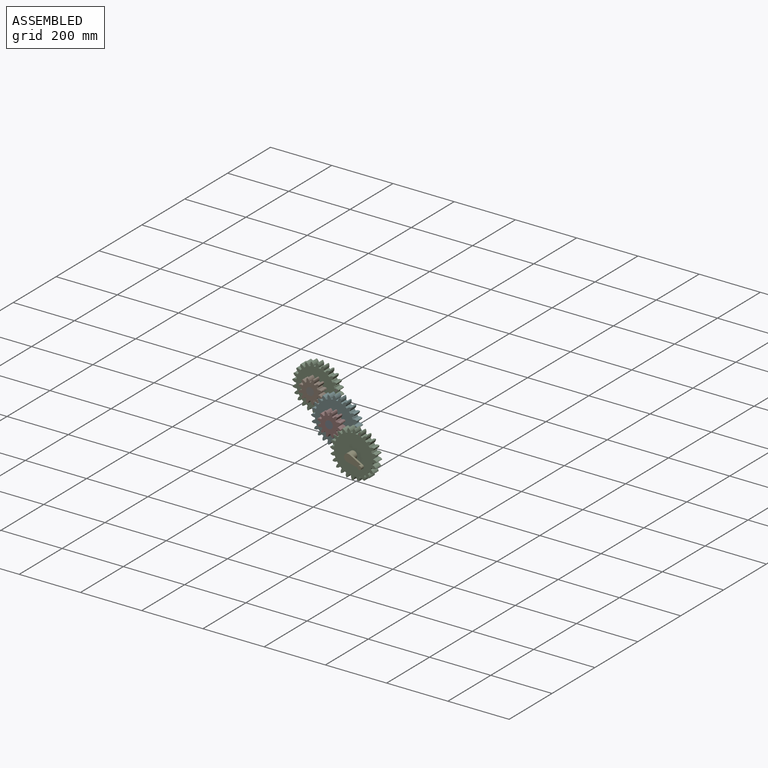
[diagram: assembled view]
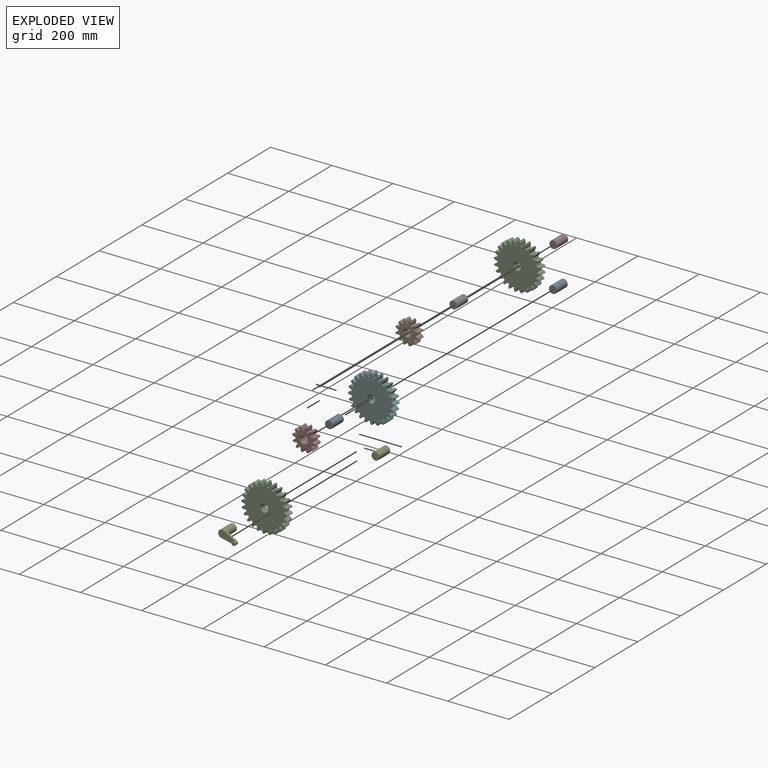
[diagram: exploded view]
GUIDED TOUR — MATED ASSEMBLY (Onshape document 572100a6e4b03e934c71d7c7, AutoMate assembly 572100a6e4b03e934c71d7c7_01c58cd28e32e69fdc508b0a_15b8ac3ff651e4833749cd05_default)

This assembly has 14 components, labeled P0..P13 below (a component is one placed occurrence of a part; the same part can appear more than once), held together by 11 mates. A mate is a constraint between two components; its type names the relative motion it leaves free:
  FASTENED — locks the two components together rigidly (no relative motion),
  REVOLUTE — leaves rotation about the listed axis free (a hinge).
Axis/direction vectors are unit vectors and 'through' points are millimeter coordinates, both in the assembly's world frame.

MATES
  1. FASTENED "Fastened 2": P5 <-> P7, direction (0.000, -1.000, 0.000) through (-79.67, 12.67, 66.97) mm
  2. REVOLUTE "Revolute 2": P0 <-> P7, axis (0.000, -1.000, 0.000) through (-79.67, -12.73, 66.97) mm
  3. REVOLUTE "Revolute 1": P12 <-> P4, axis (0.000, -1.000, 0.000) through (0.00, 12.70, 0.00) mm
  4. FASTENED "Fastened 8": P1 <-> P2, direction (0.000, 1.000, 0.000) through (20.19, -12.95, 65.74) mm
  5. FASTENED "Fastened 1": P4 <-> P2, direction (0.000, 1.000, 0.000) through (0.00, 12.70, 0.00) mm
  6. FASTENED "Fastened 5": P8 <-> P0, direction (0.000, -1.000, 0.000) through (-79.67, 38.07, 66.97) mm
  7. FASTENED "Fastened 7": P13 <-> P5, direction (0.000, 1.000, 0.000) through (-128.79, 12.42, 115.37) mm
  8. FASTENED "Fastened 4": P10 <-> P9, direction (0.000, -1.000, 0.000) through (-159.30, 38.02, 134.01) mm
  9. FASTENED "Fastened 6": P11 <-> P10, direction (0.000, 1.000, 0.000) through (-91.48, 37.77, 146.50) mm
  10. REVOLUTE "Revolute 3": P6 <-> P3, axis (0.000, 1.000, 0.000) through (-159.30, 63.42, 134.01) mm
  11. FASTENED "Fastened 3": P6 <-> P9, direction (0.000, -1.000, 0.000) through (-159.30, 12.62, 134.01) mm

ASSEMBLY ORDER
  1. P0 — the base component [order heuristic]
  2. P2 — core [order heuristic]
  3. P6 — core [order heuristic]
  4. P5 [order verified]
  5. P10 [order verified]
  6. P7 — core [order heuristic]
  7. P4 [order verified]
  8. P11 [order verified]
  9. P13 [order verified]
  10. P1 [order verified]
  11. P12 [order verified]
  12. P9 — core [order heuristic]
  13. P8 [order verified]
  14. P3 [order verified]
Order-tag legend:
  [order verified] — this step's position reverses a verified removal order: the component was checked to insert without passing through the ones already placed.
  [order heuristic] — the first 5 components form the assembly's core: parts whose collision-free extraction could not be verified, listed in mate-graph order.

Of the 14 components, 14 carry the full construction recipe — the FeatureScript program that regenerates the part's solid from scratch; the rest are supplied as boundary geometry only.
Because this assembly has more than 12 components, the tour below covers the 12 most significant ones individually (every recipe-attached component first, then the largest by part volume), in assembly order; the remaining 2 are summarized together in a grouped section at the end.
Each toured component is shown spotlighted twice — in the assembled view, then in the exploded view, where a leader line traces a displaced component back to its assembled socket (saturated green if recipe-attached, orange if geometry-only; every other component desaturated gray) — followed by its recipe or geometry summary and the mates that hold it.
NOTE — this tour is split across 2 documents so each fits a 32k-token context. This is document 1: the component sections continue in the remaining 1 document, each repeating the header above.
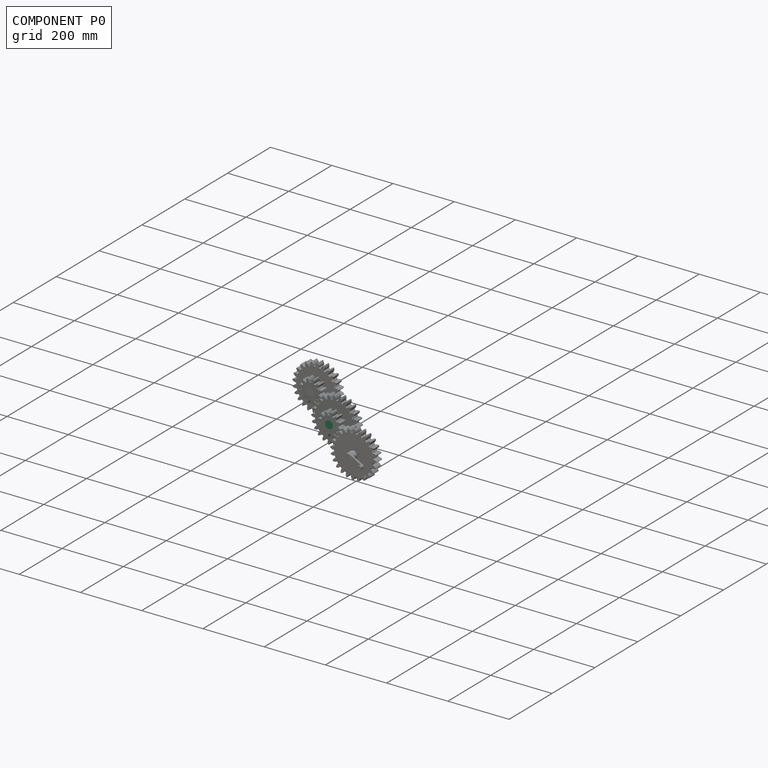
[diagram: component P0 — assembled]
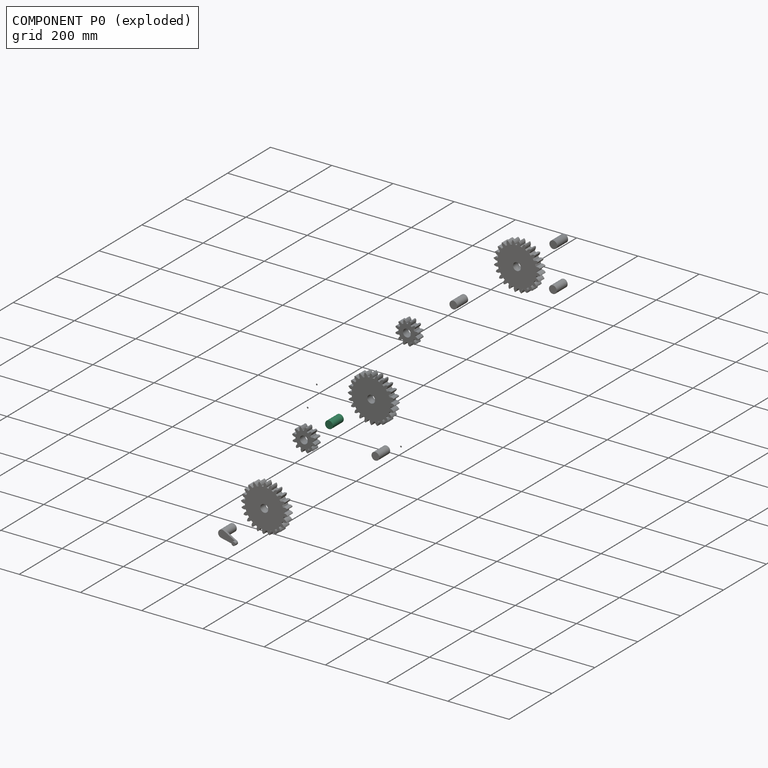
[diagram: component P0 — exploded]
COMPONENT P0 — recipe-attached (CADFS 00387538, mesh-verified: the recipe's output STEP matches this component's geometry to below the mesh-comparison resolution (tessellation chordal tolerance ~0.0933 mm)).
Held by: REVOLUTE mate "Revolute 2" to P7; FASTENED mate "Fastened 5" to P8.
Construction recipe (FeatureScript — the CAD program that rebuilds this solid; sketch coordinates are in the units given by the * unit suffixes, e.g. mm):

FeatureScript 1511;
import(path : "onshape/std/geometry.fs", version : "1511.0");
import(path : "onshape/std/common.fs", version : "1511.0");
const mm = millimeter;
const VERTEX = EntityType.VERTEX;
const EDGE = EntityType.EDGE;
const FACE = EntityType.FACE;
const BODY = EntityType.BODY;
function v(x, y){return vector(x, y);}
function OD(order){return orderDisambiguation(order);}
function OSD(set){return originalSetDisambiguation(set);}
function TD(topology){return topologyDisambiguation(topology);}
function TDD(query){return trueDependencyDisambiguation(query);}
function sQuery(a, b, c) {return sketchEntityQuery(a, b, c);}

annotation { "Feature Type Name" : "Feature", "Feature Type Description" : "" }
export const myFeature = defineFeature(function(context is Context, id is Id, definition is map)
    precondition{}
    {
        {
            var Q0;
            Q0=qCreatedBy(makeId("Front.planeOp"),FACE);
            var sketch = newSketch(context, id + "F0", { "sketchPlane" : qUnion([Q0])});
            skCircle(sketch, "E0", {"center": v(0, 0) * mm, "radius": 12.7 * mm});
            skSolve(sketch);
        }
        {
            var Q0;
            Q0=makeQuery(id+"F0.imprint","IMPRINT",FACE,{"disambiguationData":[TD([[makeQuery(id+"F0.imprint","IMPRINT",EDGE,{"derivedFrom":sQuery(id+"F0.wireOp",EDGE,"E0")}),1.0]])]});
            extrude(context, id + "F1", {"entities" : qUnion([Q0]), "depth" : 50.8 * mm});
        }
    });
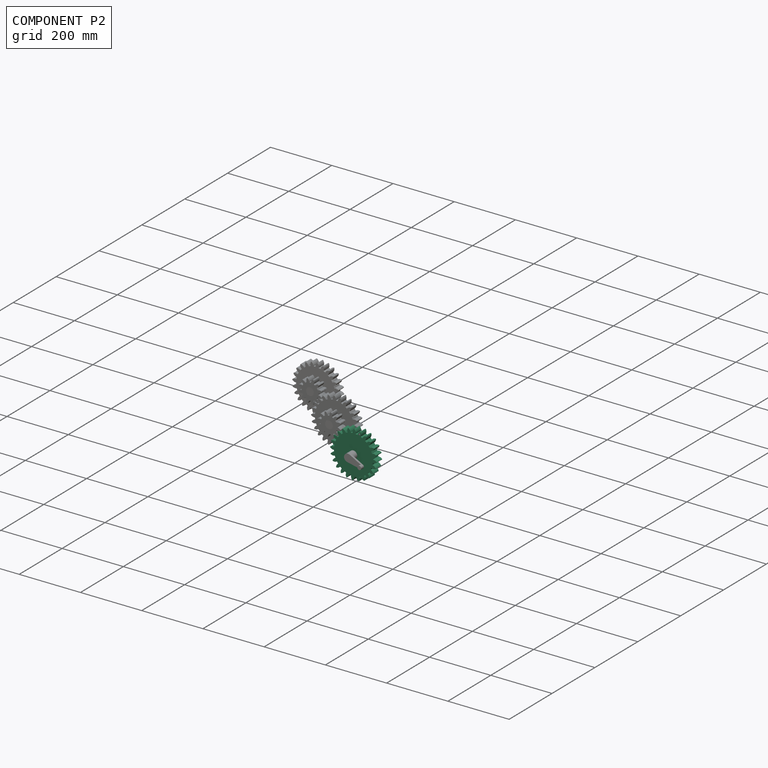
[diagram: component P2 — assembled]
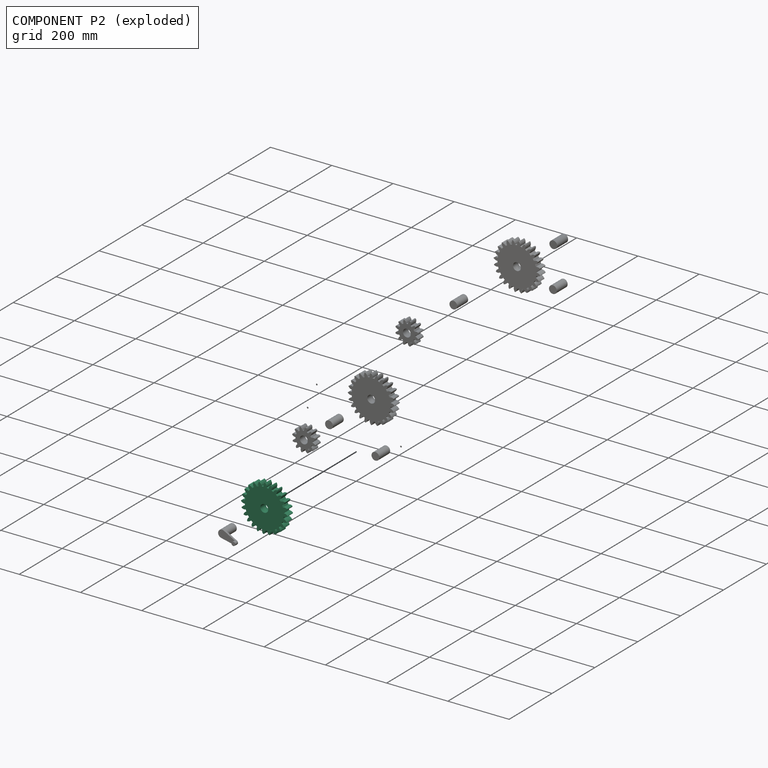
[diagram: component P2 — exploded]
COMPONENT P2 — recipe-attached (CADFS 00387536, mesh-verified: the recipe's output STEP matches this component's geometry to below the mesh-comparison resolution (tessellation chordal tolerance ~0.325 mm)).
Held by: FASTENED mate "Fastened 8" to P1; FASTENED mate "Fastened 1" to P4.
Construction recipe (FeatureScript — the CAD program that rebuilds this solid; sketch coordinates are in the units given by the * unit suffixes, e.g. mm):

FeatureScript 1511;
import(path : "onshape/std/geometry.fs", version : "1511.0");
import(path : "onshape/std/common.fs", version : "1511.0");
const mm = millimeter;
const VERTEX = EntityType.VERTEX;
const EDGE = EntityType.EDGE;
const FACE = EntityType.FACE;
const BODY = EntityType.BODY;
function v(x, y){return vector(x, y);}
function OD(order){return orderDisambiguation(order);}
function OSD(set){return originalSetDisambiguation(set);}
function TD(topology){return topologyDisambiguation(topology);}
function TDD(query){return trueDependencyDisambiguation(query);}
function sQuery(a, b, c) {return sketchEntityQuery(a, b, c);}

annotation { "Feature Type Name" : "Feature", "Feature Type Description" : "" }
export const myFeature = defineFeature(function(context is Context, id is Id, definition is map)
    precondition{}
    {
        {
            var Q0;
            Q0=qCreatedBy(makeId("Front.planeOp"),FACE);
            var sketch = newSketch(context, id + "F0", { "sketchPlane" : qUnion([Q0])});
            skPoint(sketch, "E0.rect.middle", {"position": v(0, 0) * mm});
            skLineSegment(sketch, "E1", {"start": v(0, 0) * mm, "end": v(0, 76.2) * mm});
            skLineSegment(sketch, "E2", {"start": v(0, 0) * mm, "end": v(0, -76.2) * mm});
            skLineSegment(sketch, "E3", {"start": v(0, 0) * mm, "end": v(19.72, 73.6) * mm});
            skLineSegment(sketch, "E4", {"start": v(0, 0) * mm, "end": v(38.1, 66) * mm});
            skLineSegment(sketch, "E5", {"start": v(0, 0) * mm, "end": v(53.88, 53.88) * mm});
            skLineSegment(sketch, "E6", {"start": v(0, 0) * mm, "end": v(66, 38.1) * mm});
            skLineSegment(sketch, "E7", {"start": v(0, 0) * mm, "end": v(73.6, 19.72) * mm});
            skLineSegment(sketch, "E8", {"start": v(0, 0) * mm, "end": v(76.2, 0) * mm});
            skLineSegment(sketch, "E9", {"start": v(0, 0) * mm, "end": v(73.6, -19.72) * mm});
            skLineSegment(sketch, "E10", {"start": v(0, 0) * mm, "end": v(66, -38.1) * mm});
            skLineSegment(sketch, "E11", {"start": v(0, 0) * mm, "end": v(53.88, -53.88) * mm});
            skLineSegment(sketch, "E12", {"start": v(0, 0) * mm, "end": v(38.1, -66) * mm});
            skLineSegment(sketch, "E13", {"start": v(0, 0) * mm, "end": v(19.72, -73.6) * mm});
            skLineSegment(sketch, "E14", {"start": v(0, 0) * mm, "end": v(-19.72, -73.6) * mm});
            skLineSegment(sketch, "E15", {"start": v(0, 0) * mm, "end": v(-38.1, -66) * mm});
            skLineSegment(sketch, "E16", {"start": v(0, 0) * mm, "end": v(-53.88, -53.88) * mm});
            skLineSegment(sketch, "E17", {"start": v(0, 0) * mm, "end": v(-66, -38.1) * mm});
            skLineSegment(sketch, "E18", {"start": v(0, 0) * mm, "end": v(-73.6, -19.72) * mm});
            skLineSegment(sketch, "E19", {"start": v(0, 0) * mm, "end": v(-76.2, 0.07) * mm});
            skLineSegment(sketch, "E20", {"start": v(0, 0) * mm, "end": v(-73.6, 19.72) * mm});
            skLineSegment(sketch, "E21", {"start": v(0, 0) * mm, "end": v(-66, 38.1) * mm});
            skLineSegment(sketch, "E22", {"start": v(0, 0) * mm, "end": v(-53.88, 53.88) * mm});
            skLineSegment(sketch, "E23", {"start": v(0, 0) * mm, "end": v(-38.1, 66) * mm});
            skLineSegment(sketch, "E24", {"start": v(0, 0) * mm, "end": v(-19.72, 73.6) * mm});
            skCircle(sketch, "E25", {"center": v(0, 0) * mm, "radius": 76.2 * mm});
            skCircle(sketch, "E26", {"center": v(0, 0) * mm, "radius": 69.85 * mm});
            skCircle(sketch, "E27", {"center": v(0, 0) * mm, "radius": 63.5 * mm});
            skLineSegment(sketch, "E28", {"start": v(0, 0) * mm, "end": v(-4.98, 76.04) * mm});
            skLineSegment(sketch, "E29", {"start": v(0, 69.85) * mm, "end": v(-76.58, 69.85) * mm});
            skLineSegment(sketch, "E30", {"start": v(0, 69.85) * mm, "end": v(-76.5, 42) * mm});
            skLineSegment(sketch, "E31", {"start": v(-4.98, 76.04) * mm, "end": v(-7.15, 109.16) * mm});
            skLineSegment(sketch, "E32", {"start": v(0, 76.2) * mm, "end": v(0, 110.22) * mm});
            skCircle(sketch, "E33", {"center": v(0, 69.85) * mm, "radius": 14.6 * mm});
            skPoint(sketch, "E34", {"position": v(-13.72, 64.85) * mm});
            skArc(sketch, "E35", {"start": v(0.82, 63.5) * mm, "mid": v(-0.22, 70.43) * mm, "end": v(-4.37, 76.07) * mm});
            skArc(sketch, "E36.MirrorCS", {"start": v(-9.1, 62.84) * mm, "mid": v(-8.97, 69.85) * mm, "end": v(-5.6, 76) * mm});
            skSolve(sketch);
        }
        {
            var Q0;
            {var subQ1=sQuery(id+"F0.wireOp",EDGE,"E23");var subQ3=sQuery(id+"F0.wireOp",EDGE,"E27");var subQ4=makeQuery(id+"F0.imprint","INTERSECT",VERTEX,{"derivedFrom":[subQ1,subQ3]});Q0=makeQuery(id+"F0.imprint","IMPRINT",FACE,{"disambiguationData":[TD([[makeQuery(id+"F0.imprint","IMPRINT",EDGE,{"disambiguationData":[TD([[subQ4,1.0]])],"derivedFrom":subQ3}),1.0]])]});}
            var Q1;
            {var subQ1=sQuery(id+"F0.wireOp",EDGE,"E22");var subQ3=sQuery(id+"F0.wireOp",EDGE,"E27");var subQ4=makeQuery(id+"F0.imprint","INTERSECT",VERTEX,{"derivedFrom":[subQ1,subQ3]});Q1=makeQuery(id+"F0.imprint","IMPRINT",FACE,{"disambiguationData":[TD([[makeQuery(id+"F0.imprint","IMPRINT",EDGE,{"disambiguationData":[TD([[subQ4,1.0]])],"derivedFrom":subQ3}),1.0]])]});}
            var Q2;
            {var subQ1=sQuery(id+"F0.wireOp",EDGE,"E1");var subQ3=sQuery(id+"F0.wireOp",EDGE,"E33");var subQ4=makeQuery(id+"F0.imprint","INTERSECT",VERTEX,{"derivedFrom":[subQ1,subQ3]});Q2=makeQuery(id+"F0.imprint","IMPRINT",FACE,{"disambiguationData":[TD([[makeQuery(id+"F0.imprint","IMPRINT",EDGE,{"disambiguationData":[TD([[subQ4,1.0]])],"derivedFrom":subQ3}),-1.0]])]});}
            var Q3;
            {var subQ1=sQuery(id+"F0.wireOp",EDGE,"E19");var subQ3=sQuery(id+"F0.wireOp",EDGE,"E27");var subQ4=makeQuery(id+"F0.imprint","INTERSECT",VERTEX,{"derivedFrom":[subQ1,subQ3]});Q3=makeQuery(id+"F0.imprint","IMPRINT",FACE,{"disambiguationData":[TD([[makeQuery(id+"F0.imprint","IMPRINT",EDGE,{"disambiguationData":[TD([[subQ4,1.0]])],"derivedFrom":subQ3}),1.0]])]});}
            var Q4;
            {var subQ1=sQuery(id+"F0.wireOp",EDGE,"E24");var subQ3=sQuery(id+"F0.wireOp",EDGE,"E27");var subQ4=makeQuery(id+"F0.imprint","INTERSECT",VERTEX,{"derivedFrom":[subQ1,subQ3]});Q4=makeQuery(id+"F0.imprint","IMPRINT",FACE,{"disambiguationData":[TD([[makeQuery(id+"F0.imprint","IMPRINT",EDGE,{"disambiguationData":[TD([[subQ4,1.0]])],"derivedFrom":subQ3}),1.0]])]});}
            var Q5;
            {var subQ1=sQuery(id+"F0.wireOp",EDGE,"E20");var subQ3=sQuery(id+"F0.wireOp",EDGE,"E27");var subQ4=makeQuery(id+"F0.imprint","INTERSECT",VERTEX,{"derivedFrom":[subQ1,subQ3]});Q5=makeQuery(id+"F0.imprint","IMPRINT",FACE,{"disambiguationData":[TD([[makeQuery(id+"F0.imprint","IMPRINT",EDGE,{"disambiguationData":[TD([[subQ4,1.0]])],"derivedFrom":subQ3}),1.0]])]});}
            var Q6;
            {var subQ1=sQuery(id+"F0.wireOp",EDGE,"E21");var subQ3=sQuery(id+"F0.wireOp",EDGE,"E27");var subQ4=makeQuery(id+"F0.imprint","INTERSECT",VERTEX,{"derivedFrom":[subQ1,subQ3]});Q6=makeQuery(id+"F0.imprint","IMPRINT",FACE,{"disambiguationData":[TD([[makeQuery(id+"F0.imprint","IMPRINT",EDGE,{"disambiguationData":[TD([[subQ4,1.0]])],"derivedFrom":subQ3}),1.0]])]});}
            var Q7;
            {var subQ1=sQuery(id+"F0.wireOp",EDGE,"E6");var subQ3=sQuery(id+"F0.wireOp",EDGE,"E27");var subQ4=makeQuery(id+"F0.imprint","INTERSECT",VERTEX,{"derivedFrom":[subQ1,subQ3]});Q7=makeQuery(id+"F0.imprint","IMPRINT",FACE,{"disambiguationData":[TD([[makeQuery(id+"F0.imprint","IMPRINT",EDGE,{"disambiguationData":[TD([[subQ4,1.0]])],"derivedFrom":subQ3}),1.0]])]});}
            var Q8;
            {var subQ1=sQuery(id+"F0.wireOp",EDGE,"E4");var subQ3=sQuery(id+"F0.wireOp",EDGE,"E27");var subQ4=makeQuery(id+"F0.imprint","INTERSECT",VERTEX,{"derivedFrom":[subQ1,subQ3]});Q8=makeQuery(id+"F0.imprint","IMPRINT",FACE,{"disambiguationData":[TD([[makeQuery(id+"F0.imprint","IMPRINT",EDGE,{"disambiguationData":[TD([[subQ4,1.0]])],"derivedFrom":subQ3}),1.0]])]});}
            var Q9;
            {var subQ1=sQuery(id+"F0.wireOp",EDGE,"E7");var subQ3=sQuery(id+"F0.wireOp",EDGE,"E27");var subQ4=makeQuery(id+"F0.imprint","INTERSECT",VERTEX,{"derivedFrom":[subQ1,subQ3]});Q9=makeQuery(id+"F0.imprint","IMPRINT",FACE,{"disambiguationData":[TD([[makeQuery(id+"F0.imprint","IMPRINT",EDGE,{"disambiguationData":[TD([[subQ4,1.0]])],"derivedFrom":subQ3}),1.0]])]});}
            var Q10;
            {var subQ0=sQuery(id+"F0.wireOp",EDGE,"E3");var subQ5=sQuery(id+"F0.wireOp",EDGE,"E27");var subQ6=makeQuery(id+"F0.imprint","INTERSECT",VERTEX,{"derivedFrom":[subQ0,subQ5]});Q10=makeQuery(id+"F0.imprint","IMPRINT",FACE,{"disambiguationData":[TD([[makeQuery(id+"F0.imprint","IMPRINT",EDGE,{"disambiguationData":[TD([[subQ6,-1.0]])],"derivedFrom":subQ5}),1.0]])]});}
            var Q11;
            {var subQ1=sQuery(id+"F0.wireOp",EDGE,"E3");var subQ3=sQuery(id+"F0.wireOp",EDGE,"E27");var subQ4=makeQuery(id+"F0.imprint","INTERSECT",VERTEX,{"derivedFrom":[subQ1,subQ3]});Q11=makeQuery(id+"F0.imprint","IMPRINT",FACE,{"disambiguationData":[TD([[makeQuery(id+"F0.imprint","IMPRINT",EDGE,{"disambiguationData":[TD([[subQ4,1.0]])],"derivedFrom":subQ3}),1.0]])]});}
            var Q12;
            {var subQ1=sQuery(id+"F0.wireOp",EDGE,"E5");var subQ3=sQuery(id+"F0.wireOp",EDGE,"E27");var subQ4=makeQuery(id+"F0.imprint","INTERSECT",VERTEX,{"derivedFrom":[subQ1,subQ3]});Q12=makeQuery(id+"F0.imprint","IMPRINT",FACE,{"disambiguationData":[TD([[makeQuery(id+"F0.imprint","IMPRINT",EDGE,{"disambiguationData":[TD([[subQ4,1.0]])],"derivedFrom":subQ3}),1.0]])]});}
            var Q13;
            {var subQ1=sQuery(id+"F0.wireOp",EDGE,"E17");var subQ3=sQuery(id+"F0.wireOp",EDGE,"E27");var subQ4=makeQuery(id+"F0.imprint","INTERSECT",VERTEX,{"derivedFrom":[subQ1,subQ3]});Q13=makeQuery(id+"F0.imprint","IMPRINT",FACE,{"disambiguationData":[TD([[makeQuery(id+"F0.imprint","IMPRINT",EDGE,{"disambiguationData":[TD([[subQ4,1.0]])],"derivedFrom":subQ3}),1.0]])]});}
            var Q14;
            {var subQ1=sQuery(id+"F0.wireOp",EDGE,"E15");var subQ3=sQuery(id+"F0.wireOp",EDGE,"E27");var subQ4=makeQuery(id+"F0.imprint","INTERSECT",VERTEX,{"derivedFrom":[subQ1,subQ3]});Q14=makeQuery(id+"F0.imprint","IMPRINT",FACE,{"disambiguationData":[TD([[makeQuery(id+"F0.imprint","IMPRINT",EDGE,{"disambiguationData":[TD([[subQ4,1.0]])],"derivedFrom":subQ3}),1.0]])]});}
            var Q15;
            {var subQ1=sQuery(id+"F0.wireOp",EDGE,"E16");var subQ3=sQuery(id+"F0.wireOp",EDGE,"E27");var subQ4=makeQuery(id+"F0.imprint","INTERSECT",VERTEX,{"derivedFrom":[subQ1,subQ3]});Q15=makeQuery(id+"F0.imprint","IMPRINT",FACE,{"disambiguationData":[TD([[makeQuery(id+"F0.imprint","IMPRINT",EDGE,{"disambiguationData":[TD([[subQ4,1.0]])],"derivedFrom":subQ3}),1.0]])]});}
            var Q16;
            {var subQ1=sQuery(id+"F0.wireOp",EDGE,"E2");var subQ3=sQuery(id+"F0.wireOp",EDGE,"E27");var subQ4=makeQuery(id+"F0.imprint","INTERSECT",VERTEX,{"derivedFrom":[subQ1,subQ3]});Q16=makeQuery(id+"F0.imprint","IMPRINT",FACE,{"disambiguationData":[TD([[makeQuery(id+"F0.imprint","IMPRINT",EDGE,{"disambiguationData":[TD([[subQ4,1.0]])],"derivedFrom":subQ3}),1.0]])]});}
            var Q17;
            {var subQ1=sQuery(id+"F0.wireOp",EDGE,"E14");var subQ3=sQuery(id+"F0.wireOp",EDGE,"E27");var subQ4=makeQuery(id+"F0.imprint","INTERSECT",VERTEX,{"derivedFrom":[subQ1,subQ3]});Q17=makeQuery(id+"F0.imprint","IMPRINT",FACE,{"disambiguationData":[TD([[makeQuery(id+"F0.imprint","IMPRINT",EDGE,{"disambiguationData":[TD([[subQ4,1.0]])],"derivedFrom":subQ3}),1.0]])]});}
            var Q18;
            {var subQ1=sQuery(id+"F0.wireOp",EDGE,"E18");var subQ3=sQuery(id+"F0.wireOp",EDGE,"E27");var subQ4=makeQuery(id+"F0.imprint","INTERSECT",VERTEX,{"derivedFrom":[subQ1,subQ3]});Q18=makeQuery(id+"F0.imprint","IMPRINT",FACE,{"disambiguationData":[TD([[makeQuery(id+"F0.imprint","IMPRINT",EDGE,{"disambiguationData":[TD([[subQ4,1.0]])],"derivedFrom":subQ3}),1.0]])]});}
            var Q19;
            {var subQ0=sQuery(id+"F0.wireOp",EDGE,"E33");var subQ1=sQuery(id+"F0.wireOp",EDGE,"E1");var subQ2=makeQuery(id+"F0.imprint","INTERSECT",VERTEX,{"derivedFrom":[subQ1,subQ0]});Q19=makeQuery(id+"F0.imprint","IMPRINT",FACE,{"disambiguationData":[TD([[makeQuery(id+"F0.imprint","IMPRINT",EDGE,{"disambiguationData":[TD([[subQ2,-1.0]])],"derivedFrom":subQ1}),1.0]])]});}
            var Q20;
            {var subQ0=sQuery(id+"F0.wireOp",EDGE,"E27");var subQ1=makeQuery(id+"F0.imprint","INTERSECT",VERTEX,{"derivedFrom":[subQ0,sQuery(id+"F0.wireOp",EDGE,"E36.MirrorCS")]});Q20=makeQuery(id+"F0.imprint","IMPRINT",FACE,{"disambiguationData":[TD([[makeQuery(id+"F0.imprint","IMPRINT",EDGE,{"disambiguationData":[TD([[subQ1,1.0]])],"derivedFrom":subQ0}),1.0]])]});}
            var Q21;
            {var subQ0=sQuery(id+"F0.wireOp",EDGE,"E33");var subQ1=sQuery(id+"F0.wireOp",EDGE,"E1");var subQ2=makeQuery(id+"F0.imprint","INTERSECT",VERTEX,{"derivedFrom":[subQ1,subQ0]});Q21=makeQuery(id+"F0.imprint","IMPRINT",FACE,{"disambiguationData":[TD([[makeQuery(id+"F0.imprint","IMPRINT",EDGE,{"disambiguationData":[TD([[subQ2,-1.0]])],"derivedFrom":subQ1}),-1.0]])]});}
            var Q22;
            {var subQ1=sQuery(id+"F0.wireOp",EDGE,"E1");var subQ3=sQuery(id+"F0.wireOp",EDGE,"E27");var subQ4=makeQuery(id+"F0.imprint","INTERSECT",VERTEX,{"derivedFrom":[subQ1,subQ3]});Q22=makeQuery(id+"F0.imprint","IMPRINT",FACE,{"disambiguationData":[TD([[makeQuery(id+"F0.imprint","IMPRINT",EDGE,{"disambiguationData":[TD([[subQ4,-1.0]])],"derivedFrom":subQ3}),-1.0]])]});}
            var Q23;
            {var subQ0=sQuery(id+"F0.wireOp",EDGE,"E36.MirrorCS");var subQ1=sQuery(id+"F0.wireOp",EDGE,"E27");var subQ2=makeQuery(id+"F0.imprint","INTERSECT",VERTEX,{"derivedFrom":[subQ1,subQ0]});Q23=makeQuery(id+"F0.imprint","IMPRINT",FACE,{"disambiguationData":[TD([[makeQuery(id+"F0.imprint","IMPRINT",EDGE,{"disambiguationData":[TD([[subQ2,1.0]])],"derivedFrom":subQ1}),-1.0]])]});}
            var Q24;
            {var subQ0=sQuery(id+"F0.wireOp",EDGE,"E28");var subQ1=sQuery(id+"F0.wireOp",EDGE,"E26");var subQ2=makeQuery(id+"F0.imprint","INTERSECT",VERTEX,{"derivedFrom":[subQ1,subQ0]});Q24=makeQuery(id+"F0.imprint","IMPRINT",FACE,{"disambiguationData":[TD([[makeQuery(id+"F0.imprint","IMPRINT",EDGE,{"disambiguationData":[TD([[subQ2,-1.0]])],"derivedFrom":subQ1}),1.0]])]});}
            var Q25;
            {var subQ0=sQuery(id+"F0.wireOp",EDGE,"E28");var subQ1=sQuery(id+"F0.wireOp",EDGE,"E26");var subQ2=makeQuery(id+"F0.imprint","INTERSECT",VERTEX,{"derivedFrom":[subQ1,subQ0]});Q25=makeQuery(id+"F0.imprint","IMPRINT",FACE,{"disambiguationData":[TD([[makeQuery(id+"F0.imprint","IMPRINT",EDGE,{"disambiguationData":[TD([[subQ2,-1.0]])],"derivedFrom":subQ1}),-1.0]])]});}
            var Q26;
            {var subQ0=sQuery(id+"F0.wireOp",EDGE,"E28");var subQ5=sQuery(id+"F0.wireOp",EDGE,"E29");var subQ6=makeQuery(id+"F0.imprint","INTERSECT",VERTEX,{"derivedFrom":[subQ0,subQ5]});Q26=makeQuery(id+"F0.imprint","IMPRINT",FACE,{"disambiguationData":[TD([[makeQuery(id+"F0.imprint","IMPRINT",EDGE,{"disambiguationData":[TD([[subQ6,-1.0]])],"derivedFrom":subQ5}),-1.0]])]});}
            var Q27;
            {var subQ1=sQuery(id+"F0.wireOp",EDGE,"E25");var subQ3=sQuery(id+"F0.wireOp",EDGE,"E35");var subQ4=makeQuery(id+"F0.imprint","INTERSECT",VERTEX,{"derivedFrom":[subQ1,subQ3]});Q27=makeQuery(id+"F0.imprint","IMPRINT",FACE,{"disambiguationData":[TD([[makeQuery(id+"F0.imprint","IMPRINT",EDGE,{"disambiguationData":[TD([[subQ4,-1.0]])],"derivedFrom":subQ1}),1.0]])]});}
            var Q28;
            {var subQ0=sQuery(id+"F0.wireOp",EDGE,"E35");var subQ3=sQuery(id+"F0.wireOp",EDGE,"E27");var subQ5=makeQuery(id+"F0.imprint","INTERSECT",VERTEX,{"derivedFrom":[subQ3,subQ0]});Q28=makeQuery(id+"F0.imprint","IMPRINT",FACE,{"disambiguationData":[TD([[makeQuery(id+"F0.imprint","IMPRINT",EDGE,{"disambiguationData":[TD([[subQ5,-1.0]])],"derivedFrom":subQ3}),-1.0]])]});}
            var Q29;
            {var subQ1=sQuery(id+"F0.wireOp",EDGE,"E26");var subQ3=sQuery(id+"F0.wireOp",EDGE,"E28");var subQ4=makeQuery(id+"F0.imprint","INTERSECT",VERTEX,{"derivedFrom":[subQ1,subQ3]});Q29=makeQuery(id+"F0.imprint","IMPRINT",FACE,{"disambiguationData":[TD([[makeQuery(id+"F0.imprint","IMPRINT",EDGE,{"disambiguationData":[TD([[subQ4,-1.0]])],"derivedFrom":subQ3}),-1.0]])]});}
            var Q30;
            {var subQ1=sQuery(id+"F0.wireOp",EDGE,"E26");var subQ3=sQuery(id+"F0.wireOp",EDGE,"E28");var subQ4=makeQuery(id+"F0.imprint","INTERSECT",VERTEX,{"derivedFrom":[subQ1,subQ3]});Q30=makeQuery(id+"F0.imprint","IMPRINT",FACE,{"disambiguationData":[TD([[makeQuery(id+"F0.imprint","IMPRINT",EDGE,{"disambiguationData":[TD([[subQ4,1.0]])],"derivedFrom":subQ3}),-1.0]])]});}
            var Q31;
            {var subQ1=sQuery(id+"F0.wireOp",EDGE,"E10");var subQ3=sQuery(id+"F0.wireOp",EDGE,"E27");var subQ4=makeQuery(id+"F0.imprint","INTERSECT",VERTEX,{"derivedFrom":[subQ1,subQ3]});Q31=makeQuery(id+"F0.imprint","IMPRINT",FACE,{"disambiguationData":[TD([[makeQuery(id+"F0.imprint","IMPRINT",EDGE,{"disambiguationData":[TD([[subQ4,1.0]])],"derivedFrom":subQ3}),1.0]])]});}
            var Q32;
            {var subQ1=sQuery(id+"F0.wireOp",EDGE,"E9");var subQ3=sQuery(id+"F0.wireOp",EDGE,"E27");var subQ4=makeQuery(id+"F0.imprint","INTERSECT",VERTEX,{"derivedFrom":[subQ1,subQ3]});Q32=makeQuery(id+"F0.imprint","IMPRINT",FACE,{"disambiguationData":[TD([[makeQuery(id+"F0.imprint","IMPRINT",EDGE,{"disambiguationData":[TD([[subQ4,1.0]])],"derivedFrom":subQ3}),1.0]])]});}
            var Q33;
            {var subQ1=sQuery(id+"F0.wireOp",EDGE,"E8");var subQ3=sQuery(id+"F0.wireOp",EDGE,"E27");var subQ4=makeQuery(id+"F0.imprint","INTERSECT",VERTEX,{"derivedFrom":[subQ1,subQ3]});Q33=makeQuery(id+"F0.imprint","IMPRINT",FACE,{"disambiguationData":[TD([[makeQuery(id+"F0.imprint","IMPRINT",EDGE,{"disambiguationData":[TD([[subQ4,1.0]])],"derivedFrom":subQ3}),1.0]])]});}
            var Q34;
            {var subQ1=sQuery(id+"F0.wireOp",EDGE,"E11");var subQ3=sQuery(id+"F0.wireOp",EDGE,"E27");var subQ4=makeQuery(id+"F0.imprint","INTERSECT",VERTEX,{"derivedFrom":[subQ1,subQ3]});Q34=makeQuery(id+"F0.imprint","IMPRINT",FACE,{"disambiguationData":[TD([[makeQuery(id+"F0.imprint","IMPRINT",EDGE,{"disambiguationData":[TD([[subQ4,1.0]])],"derivedFrom":subQ3}),1.0]])]});}
            var Q35;
            {var subQ1=sQuery(id+"F0.wireOp",EDGE,"E2");var subQ3=sQuery(id+"F0.wireOp",EDGE,"E27");var subQ4=makeQuery(id+"F0.imprint","INTERSECT",VERTEX,{"derivedFrom":[subQ1,subQ3]});Q35=makeQuery(id+"F0.imprint","IMPRINT",FACE,{"disambiguationData":[TD([[makeQuery(id+"F0.imprint","IMPRINT",EDGE,{"disambiguationData":[TD([[subQ4,-1.0]])],"derivedFrom":subQ3}),1.0]])]});}
            var Q36;
            {var subQ1=sQuery(id+"F0.wireOp",EDGE,"E12");var subQ3=sQuery(id+"F0.wireOp",EDGE,"E27");var subQ4=makeQuery(id+"F0.imprint","INTERSECT",VERTEX,{"derivedFrom":[subQ1,subQ3]});Q36=makeQuery(id+"F0.imprint","IMPRINT",FACE,{"disambiguationData":[TD([[makeQuery(id+"F0.imprint","IMPRINT",EDGE,{"disambiguationData":[TD([[subQ4,1.0]])],"derivedFrom":subQ3}),1.0]])]});}
            extrude(context, id + "F1", {"entities" : qUnion([Q0, Q1, Q2, Q3, Q4, Q5, Q6, Q7, Q8, Q9, Q10, Q11, Q12, Q13, Q14, Q15, Q16, Q17, Q18, Q19, Q20, Q21, Q22, Q23, Q24, Q25, Q26, Q27, Q28, Q29, Q30, Q31, Q32, Q33, Q34, Q35, Q36]), "endBound" : BoundingType.SYMMETRIC, "depth" : 25.4 * mm});
        }
        {
            var Q0;
            Q0=makeQuery(id+"F1.opExtrude","SWEPT_BODY",BODY,{"disambiguationData":[OSD([sQuery(id+"F0.wireOp",EDGE,"E25"),sQuery(id+"F0.wireOp",EDGE,"E27"),sQuery(id+"F0.wireOp",EDGE,"E35"),sQuery(id+"F0.wireOp",EDGE,"E36.MirrorCS")])]});
            var Q1;
            Q1=makeQuery(id+"F1.opExtrude","SWEPT_FACE",FACE,{"disambiguationData":[OSD([sQuery(id+"F0.wireOp",EDGE,"E27")])]});
            circularPattern(context, id + "F2", {"operationType" : NewBodyOperationType.ADD, "entities" : qUnion([Q0]), "axis" : qUnion([Q1]), "angle" : 15 * degree, "instanceCount" : 24});
        }
        {
            var Q0;
            Q0=makeQuery(id+"F1.opExtrude","CAP_FACE",FACE,{"disambiguationData":[OSD([sQuery(id+"F0.wireOp",EDGE,"E25"),sQuery(id+"F0.wireOp",EDGE,"E27"),sQuery(id+"F0.wireOp",EDGE,"E35"),sQuery(id+"F0.wireOp",EDGE,"E36.MirrorCS")])],"isStart":false});
            var sketch = newSketch(context, id + "F3", { "sketchPlane" : qUnion([Q0])});
            skPoint(sketch, "E37", {"position": v(0, 0) * mm});
            skSolve(sketch);
        }
        {
            var Q0;
            Q0=sQuery(id+"F3.wireOp",VERTEX,"E37");
            var Q1;
            Q1=makeQuery(id+"F1.opExtrude","SWEPT_BODY",BODY,{"disambiguationData":[OSD([sQuery(id+"F0.wireOp",EDGE,"E25"),sQuery(id+"F0.wireOp",EDGE,"E27"),sQuery(id+"F0.wireOp",EDGE,"E35"),sQuery(id+"F0.wireOp",EDGE,"E36.MirrorCS")])]});
            hole(context, id + "F4", {"style" : HoleStyle.SIMPLE, "holeDiameter" : 25.4 * mm, "endStyle" : HoleEndStyle.THROUGH, "locations" : qUnion([Q0]), "scope" : qUnion([Q1])});
        }
        {
            var Q0;
            {var subQ0=makeQuery(id+"F1.opExtrude","CAP_FACE",FACE,{"disambiguationData":[OSD([sQuery(id+"F0.wireOp",EDGE,"E25"),sQuery(id+"F0.wireOp",EDGE,"E27"),sQuery(id+"F0.wireOp",EDGE,"E35"),sQuery(id+"F0.wireOp",EDGE,"E36.MirrorCS")])],"isStart":false});Q0=makeQuery(id+"F2.boolean.opBoolean","MERGE",FACE,{"derivedFrom":[subQ0,makeQuery(id+"F2.opPattern","COPY",FACE,{"derivedFrom":subQ0,"instanceName":"1"}),makeQuery(id+"F2.opPattern","COPY",FACE,{"derivedFrom":subQ0,"instanceName":"2"}),makeQuery(id+"F2.opPattern","COPY",FACE,{"derivedFrom":subQ0,"instanceName":"3"}),makeQuery(id+"F2.opPattern","COPY",FACE,{"derivedFrom":subQ0,"instanceName":"4"}),makeQuery(id+"F2.opPattern","COPY",FACE,{"derivedFrom":subQ0,"instanceName":"5"}),makeQuery(id+"F2.opPattern","COPY",FACE,{"derivedFrom":subQ0,"instanceName":"6"}),makeQuery(id+"F2.opPattern","COPY",FACE,{"derivedFrom":subQ0,"instanceName":"7"}),makeQuery(id+"F2.opPattern","COPY",FACE,{"derivedFrom":subQ0,"instanceName":"8"}),makeQuery(id+"F2.opPattern","COPY",FACE,{"derivedFrom":subQ0,"instanceName":"9"}),makeQuery(id+"F2.opPattern","COPY",FACE,{"derivedFrom":subQ0,"instanceName":"10"}),makeQuery(id+"F2.opPattern","COPY",FACE,{"derivedFrom":subQ0,"instanceName":"11"}),makeQuery(id+"F2.opPattern","COPY",FACE,{"derivedFrom":subQ0,"instanceName":"12"}),makeQuery(id+"F2.opPattern","COPY",FACE,{"derivedFrom":subQ0,"instanceName":"13"}),makeQuery(id+"F2.opPattern","COPY",FACE,{"derivedFrom":subQ0,"instanceName":"14"}),makeQuery(id+"F2.opPattern","COPY",FACE,{"derivedFrom":subQ0,"instanceName":"15"}),makeQuery(id+"F2.opPattern","COPY",FACE,{"derivedFrom":subQ0,"instanceName":"16"}),makeQuery(id+"F2.opPattern","COPY",FACE,{"derivedFrom":subQ0,"instanceName":"17"}),makeQuery(id+"F2.opPattern","COPY",FACE,{"derivedFrom":subQ0,"instanceName":"18"}),makeQuery(id+"F2.opPattern","COPY",FACE,{"derivedFrom":subQ0,"instanceName":"19"}),makeQuery(id+"F2.opPattern","COPY",FACE,{"derivedFrom":subQ0,"instanceName":"20"}),makeQuery(id+"F2.opPattern","COPY",FACE,{"derivedFrom":subQ0,"instanceName":"21"}),makeQuery(id+"F2.opPattern","COPY",FACE,{"derivedFrom":subQ0,"instanceName":"22"}),makeQuery(id+"F2.opPattern","COPY",FACE,{"derivedFrom":subQ0,"instanceName":"23"})]});}
            var sketch = newSketch(context, id + "F5", { "sketchPlane" : qUnion([Q0])});
            skCircle(sketch, "E38", {"center": v(-4.51, 68.62) * mm, "radius": 3.51 * mm});
            skSolve(sketch);
        }
        {
            var Q0;
            Q0=makeQuery(id+"F5.imprint","IMPRINT",FACE,{"disambiguationData":[TD([[makeQuery(id+"F5.imprint","IMPRINT",EDGE,{"derivedFrom":sQuery(id+"F5.wireOp",EDGE,"E38")}),1.0]])]});
            extrude(context, id + "F6", {"entities" : qUnion([Q0]), "operationType" : NewBodyOperationType.ADD, "depth" : 0.25 * mm});
        }
    });
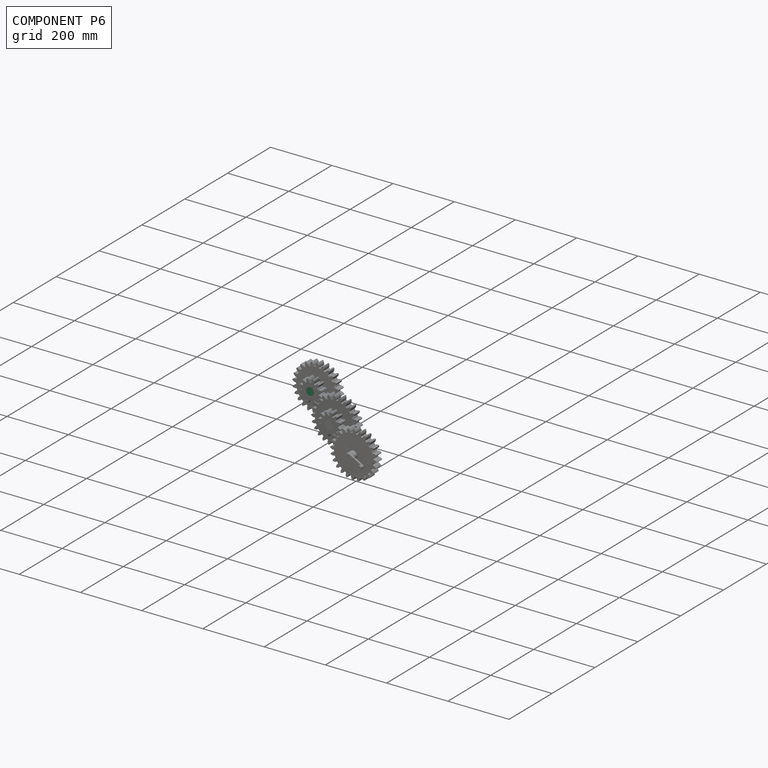
[diagram: component P6 — assembled]
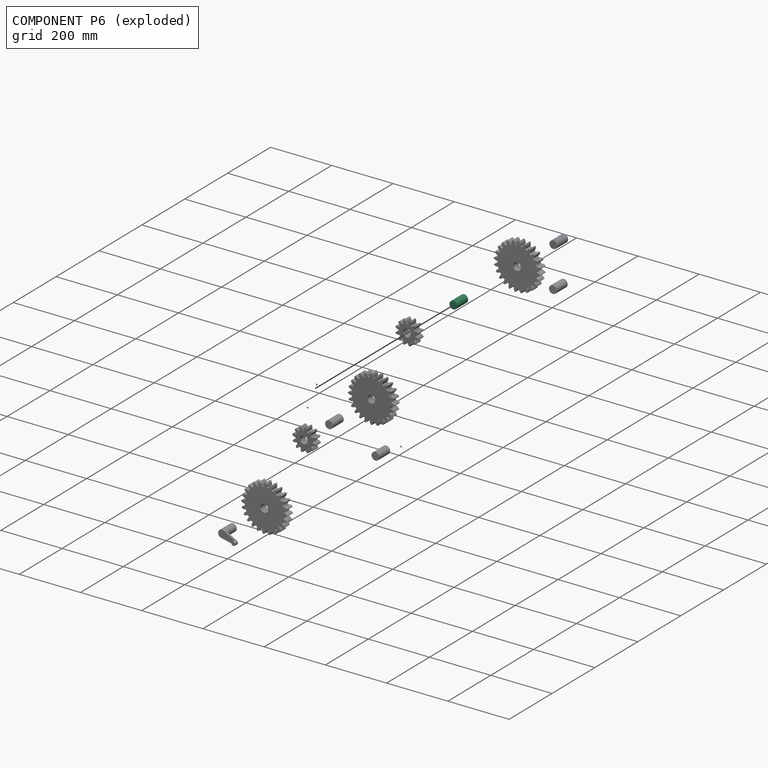
[diagram: component P6 — exploded]
COMPONENT P6 — same part as P0 (CADFS 00387538); its construction recipe is shown at P0.
Held by: REVOLUTE mate "Revolute 3" to P3; FASTENED mate "Fastened 3" to P9.
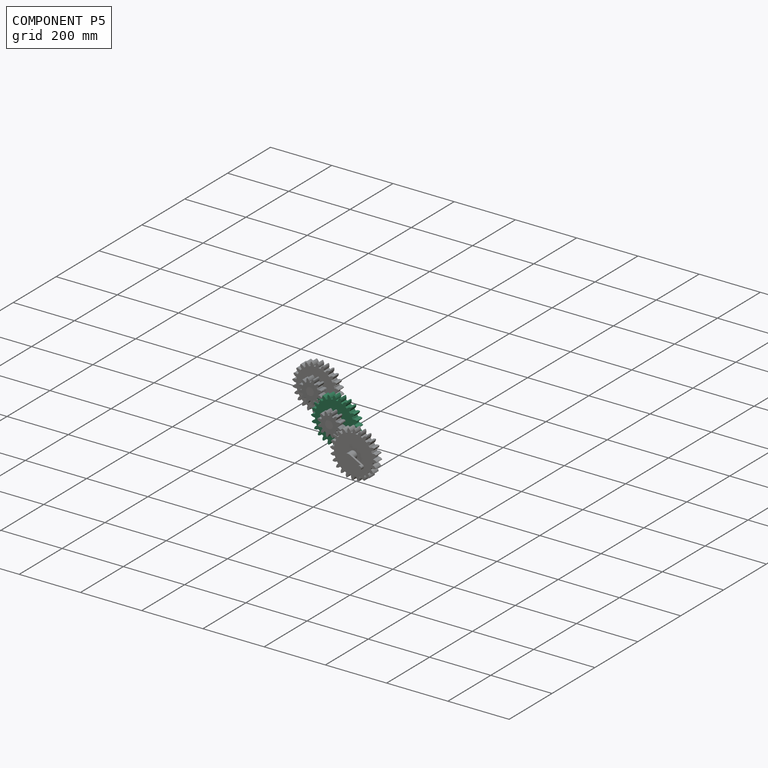
[diagram: component P5 — assembled]
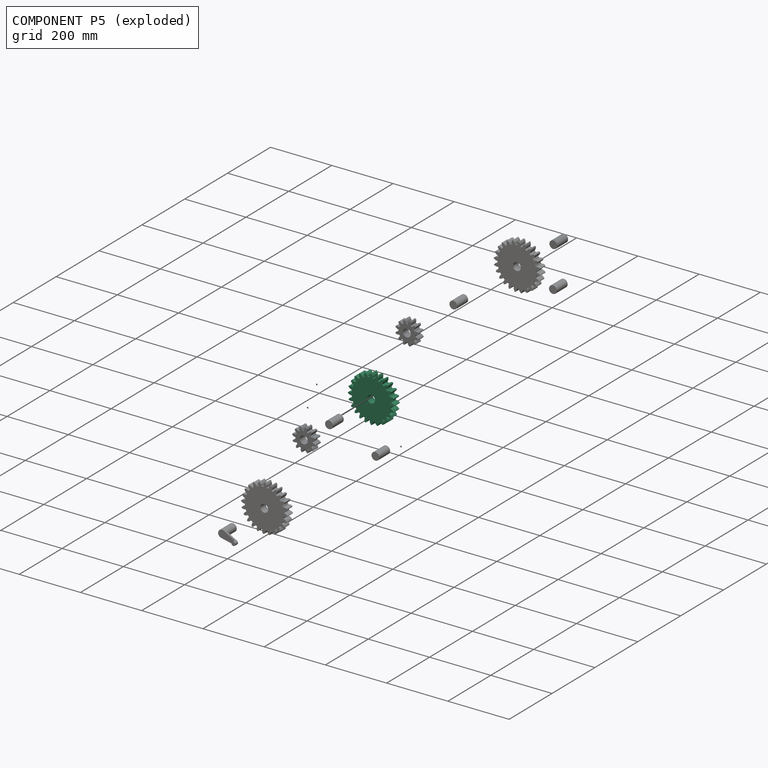
[diagram: component P5 — exploded]
COMPONENT P5 — same part as P2 (CADFS 00387536); its construction recipe is shown at P2.
Held by: FASTENED mate "Fastened 2" to P7; FASTENED mate "Fastened 7" to P13.
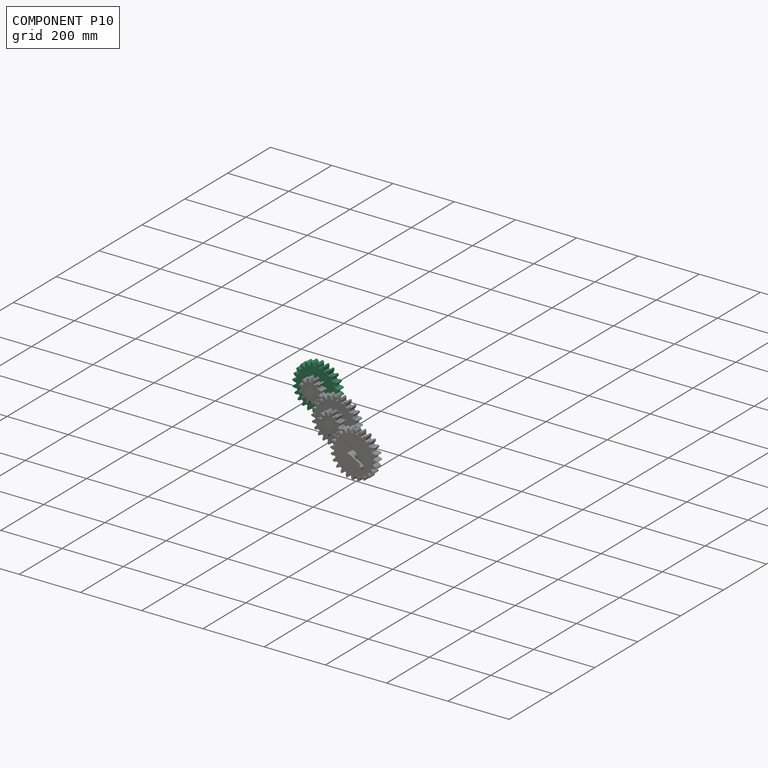
[diagram: component P10 — assembled]
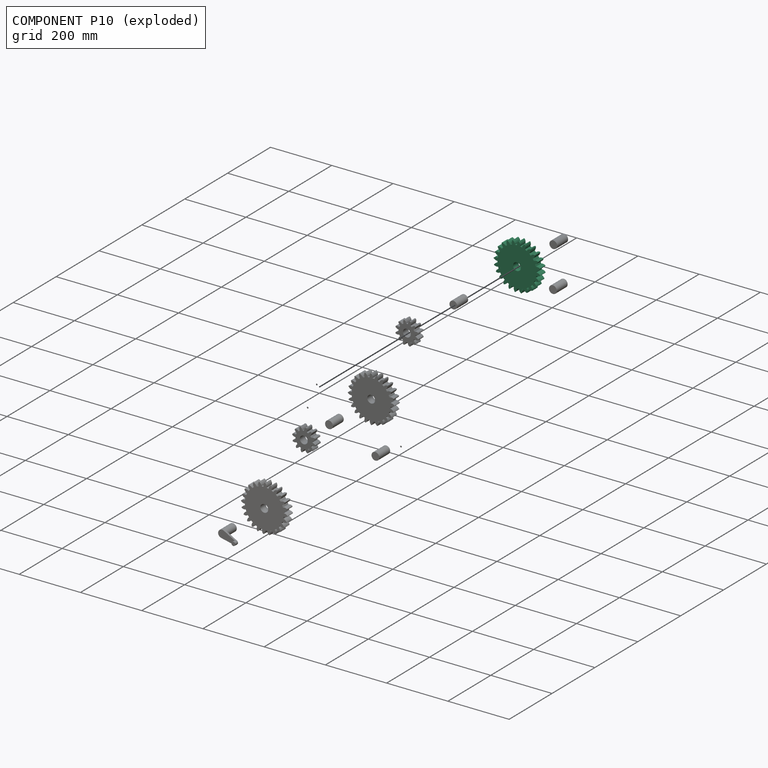
[diagram: component P10 — exploded]
COMPONENT P10 — same part as P2 (CADFS 00387536); its construction recipe is shown at P2.
Held by: FASTENED mate "Fastened 4" to P9; FASTENED mate "Fastened 6" to P11.
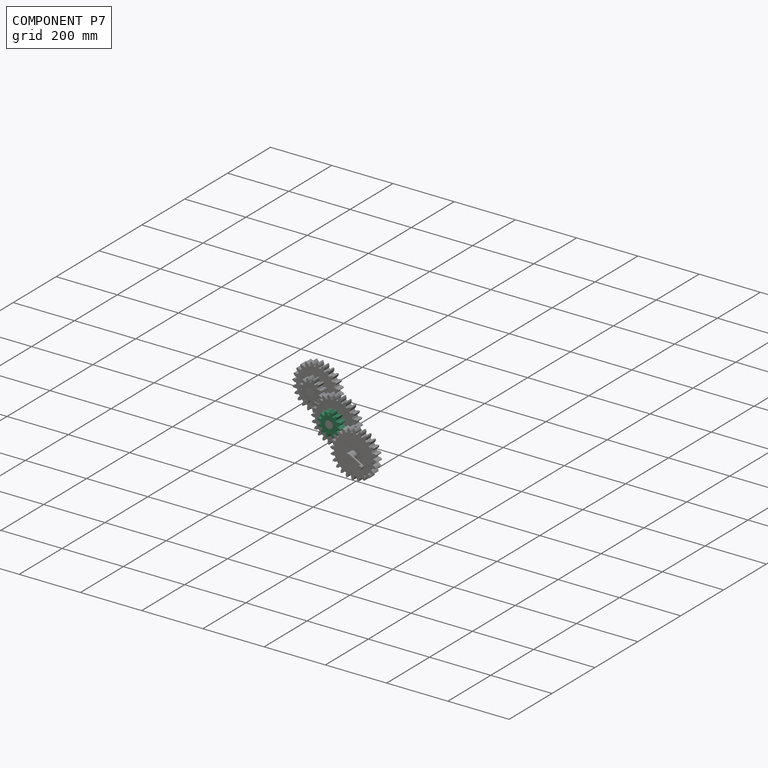
[diagram: component P7 — assembled]
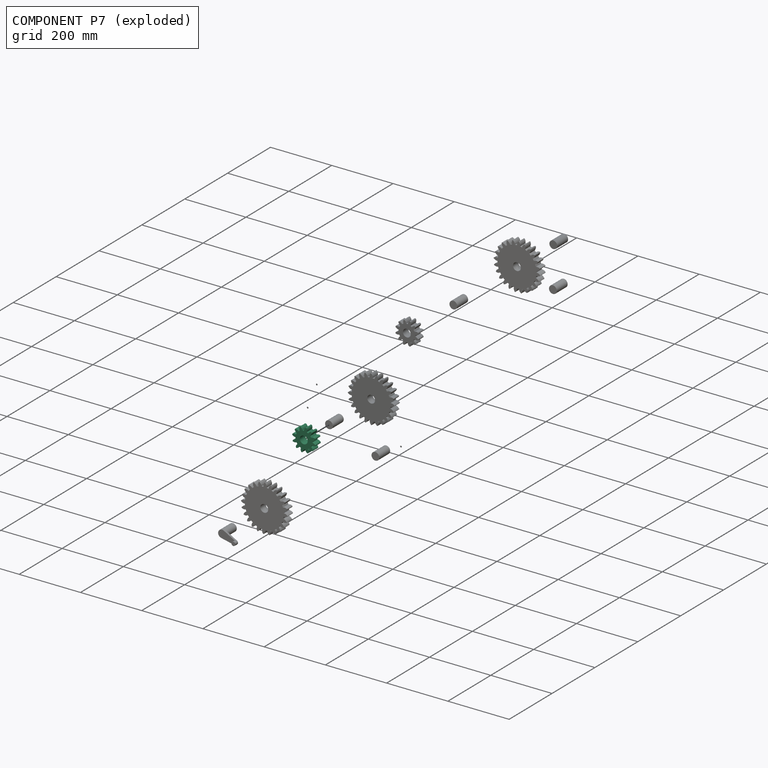
[diagram: component P7 — exploded]
COMPONENT P7 — recipe-attached (CADFS 00387537, mesh-verified: the recipe's output STEP matches this component's geometry to below the mesh-comparison resolution (tessellation chordal tolerance ~0.165 mm)).
Held by: FASTENED mate "Fastened 2" to P5; REVOLUTE mate "Revolute 2" to P0.
Construction recipe (FeatureScript — the CAD program that rebuilds this solid; sketch coordinates are in the units given by the * unit suffixes, e.g. mm):

FeatureScript 1511;
import(path : "onshape/std/geometry.fs", version : "1511.0");
import(path : "onshape/std/common.fs", version : "1511.0");
const mm = millimeter;
const VERTEX = EntityType.VERTEX;
const EDGE = EntityType.EDGE;
const FACE = EntityType.FACE;
const BODY = EntityType.BODY;
function v(x, y){return vector(x, y);}
function OD(order){return orderDisambiguation(order);}
function OSD(set){return originalSetDisambiguation(set);}
function TD(topology){return topologyDisambiguation(topology);}
function TDD(query){return trueDependencyDisambiguation(query);}
function sQuery(a, b, c) {return sketchEntityQuery(a, b, c);}

annotation { "Feature Type Name" : "Feature", "Feature Type Description" : "" }
export const myFeature = defineFeature(function(context is Context, id is Id, definition is map)
    precondition{}
    {
        {
            assignVariable(context, id + "F0", {"name" : "NOT", "anyValue" : 12});
        }
        {
            var Q0;
            Q0=qCreatedBy(makeId("Front.planeOp"),FACE);
            var sketch = newSketch(context, id + "F1", { "sketchPlane" : qUnion([Q0])});
            skCircle(sketch, "E0", {"center": v(0, 0) * mm, "radius": 38.1 * mm});
            skCircle(sketch, "E1", {"center": v(0, 0) * mm, "radius": 32.66 * mm});
            skCircle(sketch, "E2", {"center": v(0, 0) * mm, "radius": 27.21 * mm});
            skLineSegment(sketch, "E3", {"start": v(0, 0) * mm, "end": v(0, 56.5) * mm});
            skLineSegment(sketch, "E4", {"start": v(0, 0) * mm, "end": v(-7.42, 56.35) * mm});
            skLineSegment(sketch, "E5", {"start": v(0, 32.66) * mm, "end": v(-56.68, 32.66) * mm});
            skLineSegment(sketch, "E6", {"start": v(0, 32.66) * mm, "end": v(-52.94, 13.39) * mm});
            skCircle(sketch, "E7", {"center": v(0, 32.66) * mm, "radius": 14.6 * mm});
            skArc(sketch, "E8", {"start": v(0.87, 27.2) * mm, "mid": v(-0.13, 33.01) * mm, "end": v(-3.36, 37.95) * mm});
            skArc(sketch, "E9.MirrorCS", {"start": v(-7.88, 26.05) * mm, "mid": v(-8.41, 31.92) * mm, "end": v(-6.58, 37.53) * mm});
            skSolve(sketch);
        }
        {
            var Q0;
            {var subQ0=sQuery(id+"F1.wireOp",EDGE,"E3");var subQ1=sQuery(id+"F1.wireOp",EDGE,"E2");var subQ2=makeQuery(id+"F1.imprint","INTERSECT",VERTEX,{"derivedFrom":[subQ1,subQ0]});Q0=makeQuery(id+"F1.imprint","IMPRINT",FACE,{"disambiguationData":[TD([[makeQuery(id+"F1.imprint","IMPRINT",EDGE,{"disambiguationData":[TD([[subQ2,-1.0]])],"derivedFrom":subQ1}),-1.0]])]});}
            var Q1;
            {var subQ0=sQuery(id+"F1.wireOp",EDGE,"E9.MirrorCS");var subQ1=sQuery(id+"F1.wireOp",EDGE,"E2");var subQ2=makeQuery(id+"F1.imprint","INTERSECT",VERTEX,{"derivedFrom":[subQ1,subQ0]});Q1=makeQuery(id+"F1.imprint","IMPRINT",FACE,{"disambiguationData":[TD([[makeQuery(id+"F1.imprint","IMPRINT",EDGE,{"disambiguationData":[TD([[subQ2,1.0]])],"derivedFrom":subQ1}),-1.0]])]});}
            var Q2;
            {var subQ0=sQuery(id+"F1.wireOp",EDGE,"E4");var subQ1=sQuery(id+"F1.wireOp",EDGE,"E1");var subQ2=makeQuery(id+"F1.imprint","INTERSECT",VERTEX,{"derivedFrom":[subQ1,subQ0]});Q2=makeQuery(id+"F1.imprint","IMPRINT",FACE,{"disambiguationData":[TD([[makeQuery(id+"F1.imprint","IMPRINT",EDGE,{"disambiguationData":[TD([[subQ2,-1.0]])],"derivedFrom":subQ1}),1.0]])]});}
            var Q3;
            {var subQ0=sQuery(id+"F1.wireOp",EDGE,"E4");var subQ1=sQuery(id+"F1.wireOp",EDGE,"E1");var subQ2=makeQuery(id+"F1.imprint","INTERSECT",VERTEX,{"derivedFrom":[subQ1,subQ0]});Q3=makeQuery(id+"F1.imprint","IMPRINT",FACE,{"disambiguationData":[TD([[makeQuery(id+"F1.imprint","IMPRINT",EDGE,{"disambiguationData":[TD([[subQ2,-1.0]])],"derivedFrom":subQ1}),-1.0]])]});}
            var Q4;
            {var subQ1=sQuery(id+"F1.wireOp",EDGE,"E1");var subQ3=sQuery(id+"F1.wireOp",EDGE,"E4");var subQ4=makeQuery(id+"F1.imprint","INTERSECT",VERTEX,{"derivedFrom":[subQ1,subQ3]});Q4=makeQuery(id+"F1.imprint","IMPRINT",FACE,{"disambiguationData":[TD([[makeQuery(id+"F1.imprint","IMPRINT",EDGE,{"disambiguationData":[TD([[subQ4,1.0]])],"derivedFrom":subQ3}),-1.0]])]});}
            var Q5;
            {var subQ1=sQuery(id+"F1.wireOp",EDGE,"E1");var subQ3=sQuery(id+"F1.wireOp",EDGE,"E4");var subQ4=makeQuery(id+"F1.imprint","INTERSECT",VERTEX,{"derivedFrom":[subQ1,subQ3]});Q5=makeQuery(id+"F1.imprint","IMPRINT",FACE,{"disambiguationData":[TD([[makeQuery(id+"F1.imprint","IMPRINT",EDGE,{"disambiguationData":[TD([[subQ4,-1.0]])],"derivedFrom":subQ3}),-1.0]])]});}
            var Q6;
            {var subQ0=sQuery(id+"F1.wireOp",EDGE,"E8");var subQ1=sQuery(id+"F1.wireOp",EDGE,"E0");var subQ2=makeQuery(id+"F1.imprint","INTERSECT",VERTEX,{"derivedFrom":[subQ1,subQ0]});Q6=makeQuery(id+"F1.imprint","IMPRINT",FACE,{"disambiguationData":[TD([[makeQuery(id+"F1.imprint","IMPRINT",EDGE,{"disambiguationData":[TD([[subQ2,-1.0]])],"derivedFrom":subQ1}),1.0]])]});}
            var Q7;
            {var subQ0=sQuery(id+"F1.wireOp",EDGE,"E9.MirrorCS");var subQ1=sQuery(id+"F1.wireOp",EDGE,"E0");var subQ2=makeQuery(id+"F1.imprint","INTERSECT",VERTEX,{"derivedFrom":[subQ1,subQ0]});Q7=makeQuery(id+"F1.imprint","IMPRINT",FACE,{"disambiguationData":[TD([[makeQuery(id+"F1.imprint","IMPRINT",EDGE,{"disambiguationData":[TD([[subQ2,1.0]])],"derivedFrom":subQ1}),1.0]])]});}
            var Q8;
            {var subQ0=sQuery(id+"F1.wireOp",EDGE,"E8");var subQ1=sQuery(id+"F1.wireOp",EDGE,"E2");var subQ2=makeQuery(id+"F1.imprint","INTERSECT",VERTEX,{"derivedFrom":[subQ1,subQ0]});Q8=makeQuery(id+"F1.imprint","IMPRINT",FACE,{"disambiguationData":[TD([[makeQuery(id+"F1.imprint","IMPRINT",EDGE,{"disambiguationData":[TD([[subQ2,-1.0]])],"derivedFrom":subQ1}),-1.0]])]});}
            var Q9;
            {var subQ0=sQuery(id+"F1.wireOp",EDGE,"E7");var subQ1=sQuery(id+"F1.wireOp",EDGE,"E2");var subQ8=makeQuery(id+"F1.imprint","INTERSECT",VERTEX,{"disambiguationData":[OD(0.0)],"derivedFrom":[subQ1,subQ0]});Q9=makeQuery(id+"F1.imprint","IMPRINT",FACE,{"disambiguationData":[TD([[makeQuery(id+"F1.imprint","IMPRINT",EDGE,{"disambiguationData":[TD([[subQ8,1.0]])],"derivedFrom":subQ1}),1.0]])]});}
            var Q10;
            {var subQ0=sQuery(id+"F1.wireOp",EDGE,"E2");var subQ1=makeQuery(id+"F1.imprint","INTERSECT",VERTEX,{"derivedFrom":[subQ0,sQuery(id+"F1.wireOp",EDGE,"E9.MirrorCS")]});Q10=makeQuery(id+"F1.imprint","IMPRINT",FACE,{"disambiguationData":[TD([[makeQuery(id+"F1.imprint","IMPRINT",EDGE,{"disambiguationData":[TD([[subQ1,1.0]])],"derivedFrom":subQ0}),1.0]])]});}
            var Q11;
            {var subQ0=sQuery(id+"F1.wireOp",EDGE,"E3");var subQ1=sQuery(id+"F1.wireOp",EDGE,"E2");var subQ2=makeQuery(id+"F1.imprint","INTERSECT",VERTEX,{"derivedFrom":[subQ1,subQ0]});Q11=makeQuery(id+"F1.imprint","IMPRINT",FACE,{"disambiguationData":[TD([[makeQuery(id+"F1.imprint","IMPRINT",EDGE,{"disambiguationData":[TD([[subQ2,-1.0]])],"derivedFrom":subQ1}),1.0]])]});}
            var Q12;
            {var subQ0=sQuery(id+"F1.wireOp",EDGE,"E4");var subQ1=sQuery(id+"F1.wireOp",EDGE,"E3");var subQ2=makeQuery(id+"F1.imprint","INTERSECT",VERTEX,{"derivedFrom":[subQ1,subQ0]});Q12=makeQuery(id+"F1.imprint","IMPRINT",FACE,{"disambiguationData":[TD([[makeQuery(id+"F1.imprint","IMPRINT",EDGE,{"disambiguationData":[TD([[subQ2,-1.0]])],"derivedFrom":subQ1}),1.0]])]});}
            var Q13;
            {var subQ0=sQuery(id+"F1.wireOp",EDGE,"E2");var subQ1=makeQuery(id+"F1.imprint","INTERSECT",VERTEX,{"derivedFrom":[subQ0,sQuery(id+"F1.wireOp",EDGE,"E8")]});Q13=makeQuery(id+"F1.imprint","IMPRINT",FACE,{"disambiguationData":[TD([[makeQuery(id+"F1.imprint","IMPRINT",EDGE,{"disambiguationData":[TD([[subQ1,1.0]])],"derivedFrom":subQ0}),1.0]])]});}
            extrude(context, id + "F2", {"entities" : qUnion([Q0, Q1, Q2, Q3, Q4, Q5, Q6, Q7, Q8, Q9, Q10, Q11, Q12, Q13]), "endBound" : BoundingType.SYMMETRIC, "depth" : 25.4 * mm});
        }
        {
            var Q0;
            Q0=makeQuery(id+"F2.opExtrude","SWEPT_BODY",BODY,{"disambiguationData":[OSD([sQuery(id+"F1.wireOp",EDGE,"E0"),sQuery(id+"F1.wireOp",EDGE,"E2"),sQuery(id+"F1.wireOp",EDGE,"E8"),sQuery(id+"F1.wireOp",EDGE,"E9.MirrorCS")])]});
            var Q1;
            Q1=makeQuery(id+"F2.opExtrude","SWEPT_FACE",FACE,{"disambiguationData":[OSD([sQuery(id+"F1.wireOp",EDGE,"E2")])]});
            circularPattern(context, id + "F3", {"operationType" : NewBodyOperationType.ADD, "entities" : qUnion([Q0]), "axis" : qUnion([Q1]), "angle" : (360 / getVariable(context, 'NOT')) * degree, "instanceCount" : getVariable(context, 'NOT')});
        }
        {
            var Q0;
            {var subQ0=makeQuery(id+"F2.opExtrude","CAP_FACE",FACE,{"disambiguationData":[OSD([sQuery(id+"F1.wireOp",EDGE,"E0"),sQuery(id+"F1.wireOp",EDGE,"E2"),sQuery(id+"F1.wireOp",EDGE,"E8"),sQuery(id+"F1.wireOp",EDGE,"E9.MirrorCS")])],"isStart":false});Q0=makeQuery(id+"F3.boolean.opBoolean","MERGE",FACE,{"derivedFrom":[subQ0,makeQuery(id+"F3.opPattern","COPY",FACE,{"derivedFrom":subQ0,"instanceName":"1"}),makeQuery(id+"F3.opPattern","COPY",FACE,{"derivedFrom":subQ0,"instanceName":"2"}),makeQuery(id+"F3.opPattern","COPY",FACE,{"derivedFrom":subQ0,"instanceName":"3"}),makeQuery(id+"F3.opPattern","COPY",FACE,{"derivedFrom":subQ0,"instanceName":"4"}),makeQuery(id+"F3.opPattern","COPY",FACE,{"derivedFrom":subQ0,"instanceName":"5"}),makeQuery(id+"F3.opPattern","COPY",FACE,{"derivedFrom":subQ0,"instanceName":"6"}),makeQuery(id+"F3.opPattern","COPY",FACE,{"derivedFrom":subQ0,"instanceName":"7"}),makeQuery(id+"F3.opPattern","COPY",FACE,{"derivedFrom":subQ0,"instanceName":"8"}),makeQuery(id+"F3.opPattern","COPY",FACE,{"derivedFrom":subQ0,"instanceName":"9"}),makeQuery(id+"F3.opPattern","COPY",FACE,{"derivedFrom":subQ0,"instanceName":"10"}),makeQuery(id+"F3.opPattern","COPY",FACE,{"derivedFrom":subQ0,"instanceName":"11"})]});}
            var sketch = newSketch(context, id + "F4", { "sketchPlane" : qUnion([Q0])});
            skPoint(sketch, "E10", {"position": v(0, 0) * mm});
            skSolve(sketch);
        }
        {
            var Q0;
            Q0=sQuery(id+"F4.wireOp",VERTEX,"E10");
            var Q1;
            Q1=makeQuery(id+"F2.opExtrude","SWEPT_BODY",BODY,{"disambiguationData":[OSD([sQuery(id+"F1.wireOp",EDGE,"E0"),sQuery(id+"F1.wireOp",EDGE,"E2"),sQuery(id+"F1.wireOp",EDGE,"E8"),sQuery(id+"F1.wireOp",EDGE,"E9.MirrorCS")])]});
            hole(context, id + "F5", {"style" : HoleStyle.SIMPLE, "holeDiameter" : 25.4 * mm, "endStyle" : HoleEndStyle.THROUGH, "locations" : qUnion([Q0]), "scope" : qUnion([Q1])});
        }
    });
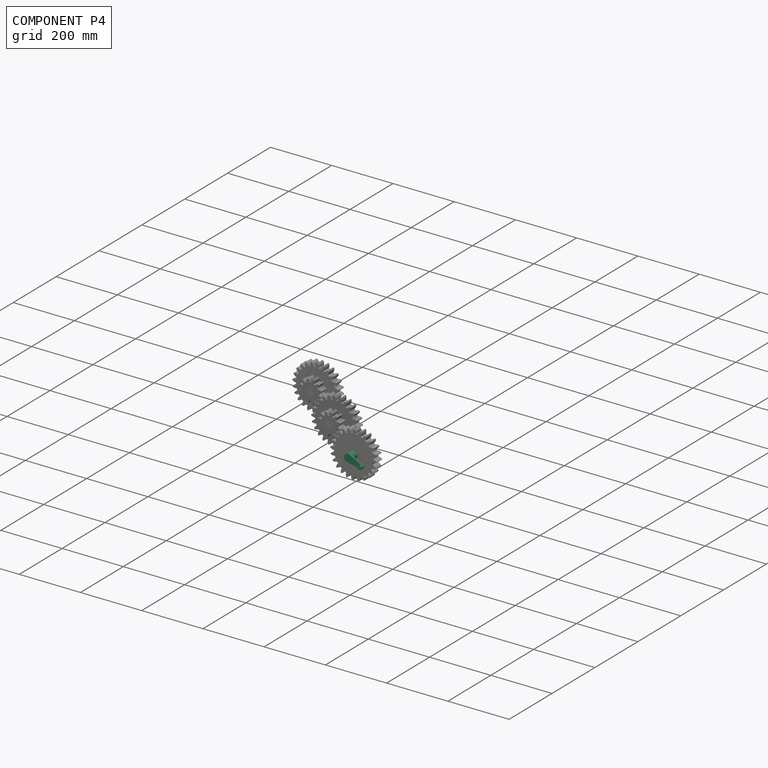
[diagram: component P4 — assembled]
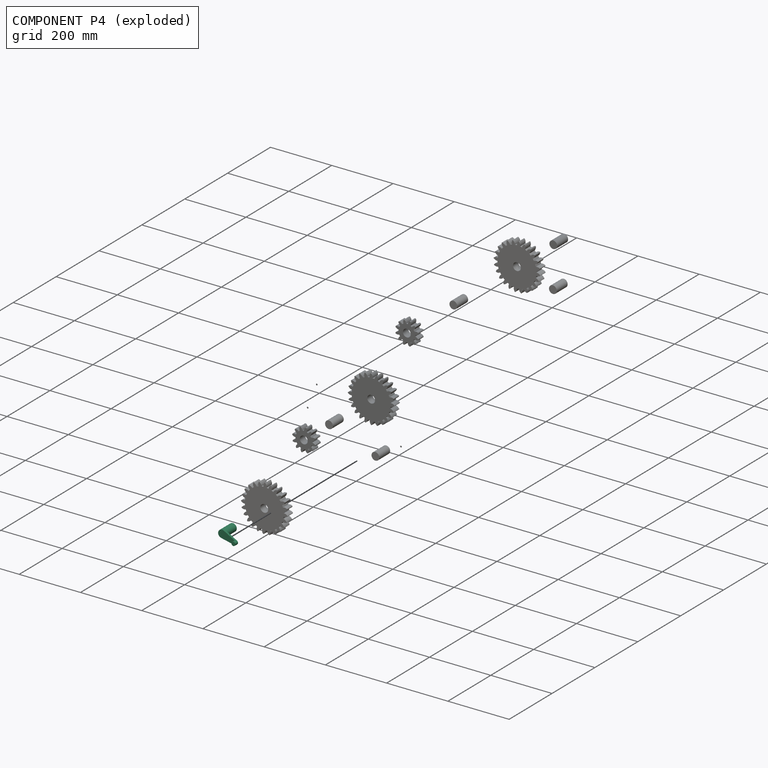
[diagram: component P4 — exploded]
COMPONENT P4 — recipe-attached (CADFS 00140564, mesh-verified: the recipe's output STEP matches this component's geometry to below the mesh-comparison resolution (tessellation chordal tolerance ~0.134 mm)).
Held by: REVOLUTE mate "Revolute 1" to P12; FASTENED mate "Fastened 1" to P2.
Construction recipe (FeatureScript — the CAD program that rebuilds this solid; sketch coordinates are in the units given by the * unit suffixes, e.g. mm):

FeatureScript 1511;
import(path : "onshape/std/geometry.fs", version : "1511.0");
import(path : "onshape/std/common.fs", version : "1511.0");
const mm = millimeter;
const VERTEX = EntityType.VERTEX;
const EDGE = EntityType.EDGE;
const FACE = EntityType.FACE;
const BODY = EntityType.BODY;
function v(x, y){return vector(x, y);}
function OD(order){return orderDisambiguation(order);}
function OSD(set){return originalSetDisambiguation(set);}
function TD(topology){return topologyDisambiguation(topology);}
function TDD(query){return trueDependencyDisambiguation(query);}
function sQuery(a, b, c) {return sketchEntityQuery(a, b, c);}

annotation { "Feature Type Name" : "Feature", "Feature Type Description" : "" }
export const myFeature = defineFeature(function(context is Context, id is Id, definition is map)
    precondition{}
    {
        {
            var Q0;
            Q0=qCreatedBy(makeId("Front.planeOp"),FACE);
            var sketch = newSketch(context, id + "F0", { "sketchPlane" : qUnion([Q0])});
            skCircle(sketch, "E0", {"center": v(0, 0) * mm, "radius": 12.7 * mm});
            skCircle(sketch, "E1", {"center": v(44.45, 0) * mm, "radius": 6.35 * mm});
            skLineSegment(sketch, "E2", {"start": v(12.7, 0) * mm, "end": v(38.1, 0) * mm});
            skLineSegment(sketch, "E3", {"start": v(45.36, 6.28) * mm, "end": v(1.81, 12.57) * mm});
            skLineSegment(sketch, "E4", {"start": v(1.81, -12.57) * mm, "end": v(45.36, -6.28) * mm});
            skSolve(sketch);
        }
        {
            var Q0;
            Q0=makeQuery(id+"F0.imprint","IMPRINT",FACE,{"disambiguationData":[TD([[makeQuery(id+"F0.imprint","IMPRINT",EDGE,{"derivedFrom":sQuery(id+"F0.wireOp",EDGE,"E0")}),1.0]])]});
            extrude(context, id + "F1", {"entities" : qUnion([Q0]), "depth" : 50.8 * mm});
        }
        {
            var Q0;
            {var subQ0=sQuery(id+"F0.wireOp",EDGE,"E2");Q0=makeQuery(id+"F0.imprint","IMPRINT",FACE,{"disambiguationData":[TD([[makeQuery(id+"F0.imprint","IMPRINT",EDGE,{"derivedFrom":subQ0}),1.0]])]});}
            var Q1;
            {var subQ0=sQuery(id+"F0.wireOp",EDGE,"E2");Q1=makeQuery(id+"F0.imprint","IMPRINT",FACE,{"disambiguationData":[TD([[makeQuery(id+"F0.imprint","IMPRINT",EDGE,{"derivedFrom":subQ0}),-1.0]])]});}
            var Q2;
            {var subQ0=sQuery(id+"F0.wireOp",EDGE,"E1");var subQ1=makeQuery(id+"F0.imprint","INTERSECT",VERTEX,{"derivedFrom":[subQ0,sQuery(id+"F0.wireOp",EDGE,"E2")]});Q2=makeQuery(id+"F0.imprint","IMPRINT",FACE,{"disambiguationData":[TD([[makeQuery(id+"F0.imprint","IMPRINT",EDGE,{"disambiguationData":[TD([[subQ1,1.0]])],"derivedFrom":subQ0}),1.0]])]});}
            extrude(context, id + "F2", {"entities" : qUnion([Q0, Q1, Q2]), "operationType" : NewBodyOperationType.ADD, "depth" : 50.8 * mm, "hasSecondDirection" : true, "secondDirectionOppositeDirection" : false, "secondDirectionDepth" : 44.45 * mm});
        }
        {
            var Q0;
            {var subQ0=sQuery(id+"F0.wireOp",EDGE,"E1");var subQ1=makeQuery(id+"F0.imprint","INTERSECT",VERTEX,{"derivedFrom":[subQ0,sQuery(id+"F0.wireOp",EDGE,"E2")]});Q0=makeQuery(id+"F0.imprint","IMPRINT",FACE,{"disambiguationData":[TD([[makeQuery(id+"F0.imprint","IMPRINT",EDGE,{"disambiguationData":[TD([[subQ1,1.0]])],"derivedFrom":subQ0}),1.0]])]});}
            extrude(context, id + "F3", {"entities" : qUnion([Q0]), "operationType" : NewBodyOperationType.ADD, "depth" : 57.15 * mm, "hasSecondDirection" : true, "secondDirectionOppositeDirection" : false, "secondDirectionDepth" : 50.8 * mm});
        }
    });
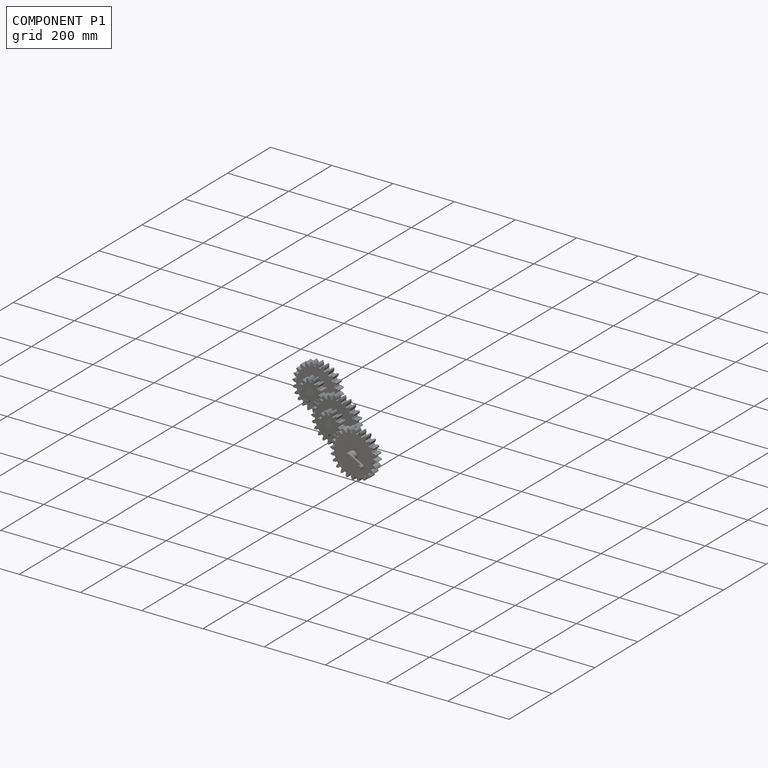
[diagram: component P1 — assembled]
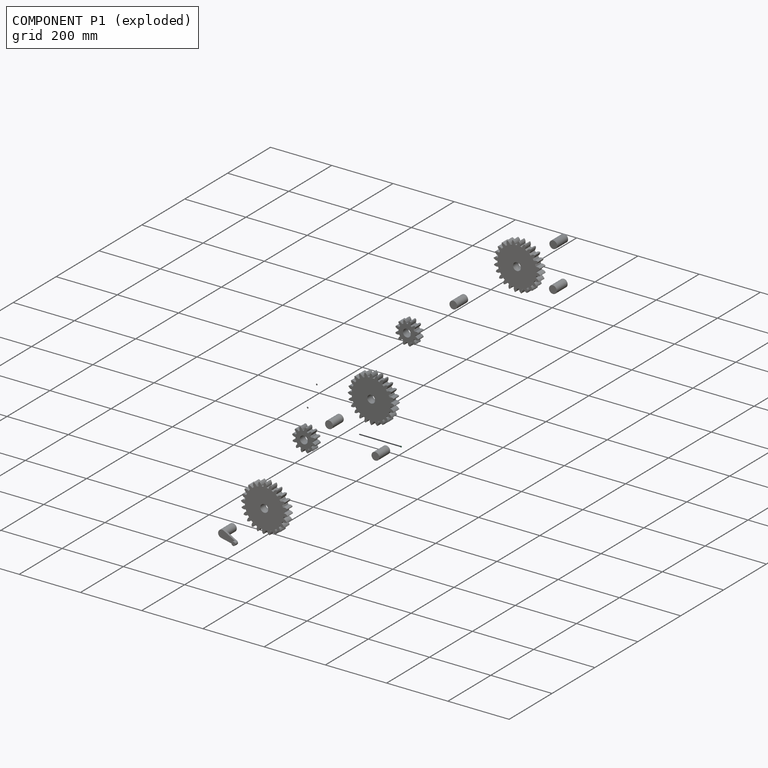
[diagram: component P1 — exploded]
COMPONENT P1 — recipe-attached (CADFS 00387540, mesh-verified: the recipe's output STEP matches this component's geometry to below the mesh-comparison resolution (tessellation chordal tolerance ~0.0108 mm)).
Held by: FASTENED mate "Fastened 8" to P2.
Construction recipe (FeatureScript — the CAD program that rebuilds this solid; sketch coordinates are in the units given by the * unit suffixes, e.g. mm):

FeatureScript 1511;
import(path : "onshape/std/geometry.fs", version : "1511.0");
import(path : "onshape/std/common.fs", version : "1511.0");
const mm = millimeter;
const VERTEX = EntityType.VERTEX;
const EDGE = EntityType.EDGE;
const FACE = EntityType.FACE;
const BODY = EntityType.BODY;
function v(x, y){return vector(x, y);}
function OD(order){return orderDisambiguation(order);}
function OSD(set){return originalSetDisambiguation(set);}
function TD(topology){return topologyDisambiguation(topology);}
function TDD(query){return trueDependencyDisambiguation(query);}
function sQuery(a, b, c) {return sketchEntityQuery(a, b, c);}

annotation { "Feature Type Name" : "Feature", "Feature Type Description" : "" }
export const myFeature = defineFeature(function(context is Context, id is Id, definition is map)
    precondition{}
    {
        {
            var Q0;
            Q0=qCreatedBy(makeId("Front.planeOp"),FACE);
            var sketch = newSketch(context, id + "F0", { "sketchPlane" : qUnion([Q0])});
            skCircle(sketch, "E0", {"center": v(0, 0) * mm, "radius": 2.54 * mm});
            skSolve(sketch);
        }
        {
            var Q0;
            Q0=makeQuery(id+"F0.imprint","IMPRINT",FACE,{"disambiguationData":[TD([[makeQuery(id+"F0.imprint","IMPRINT",EDGE,{"derivedFrom":sQuery(id+"F0.wireOp",EDGE,"E0")}),1.0]])]});
            extrude(context, id + "F1", {"entities" : qUnion([Q0]), "endBound" : BoundingType.SYMMETRIC, "depth" : 0.25 * mm});
        }
    });
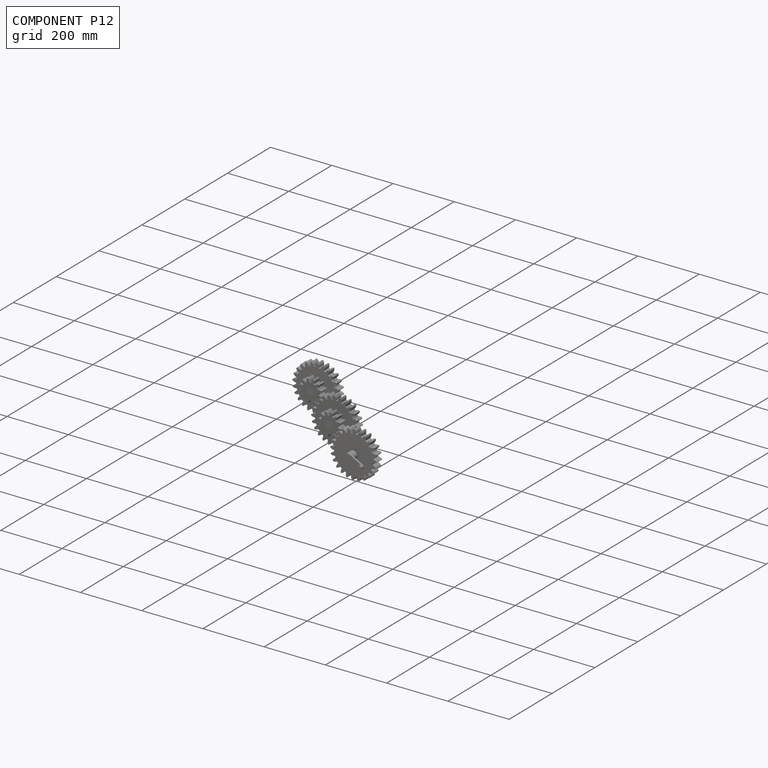
[diagram: component P12 — assembled]
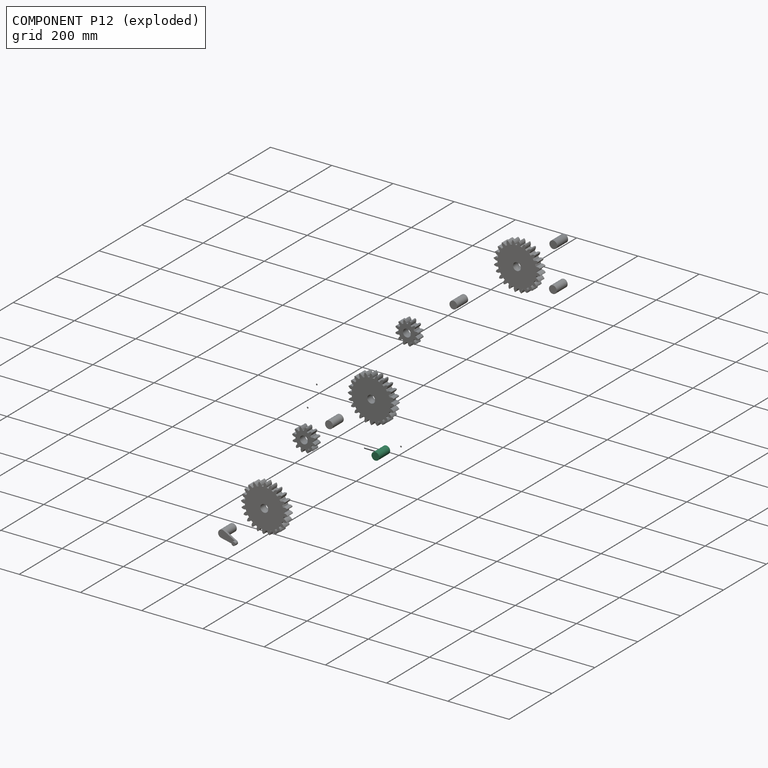
[diagram: component P12 — exploded]
COMPONENT P12 — same part as P0 (CADFS 00387538); its construction recipe is shown at P0.
Held by: REVOLUTE mate "Revolute 1" to P4.
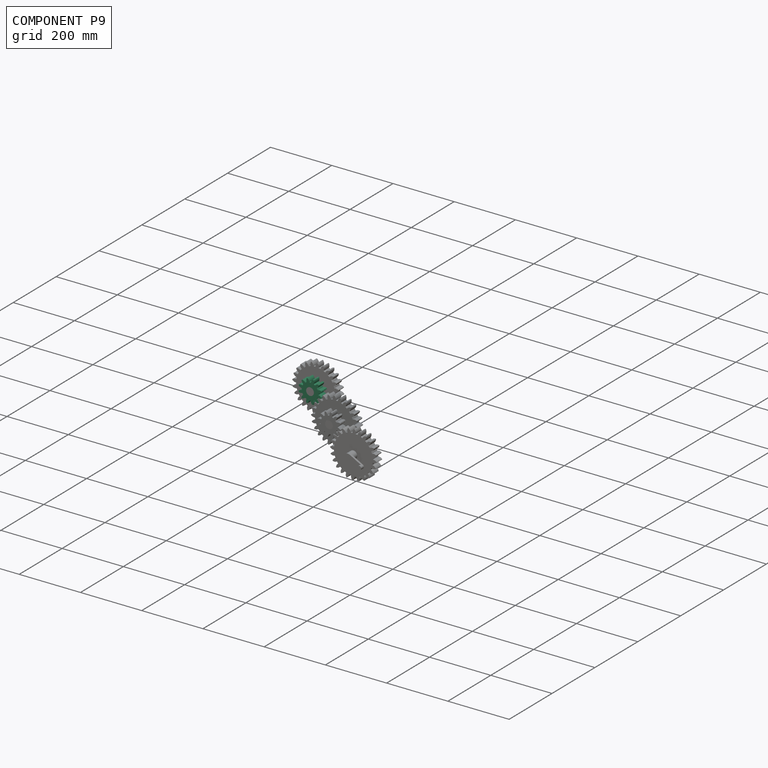
[diagram: component P9 — assembled]
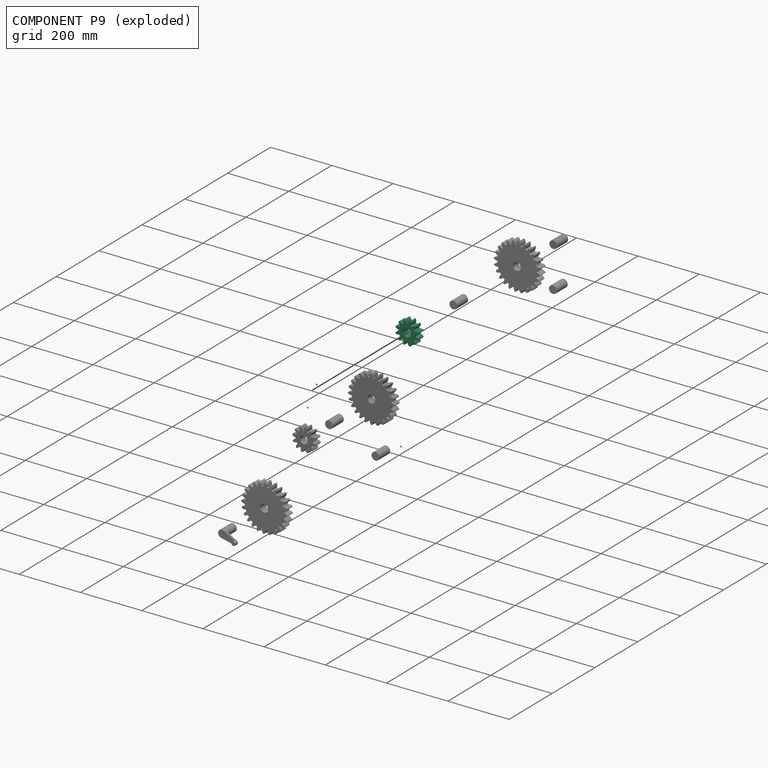
[diagram: component P9 — exploded]
COMPONENT P9 — same part as P7 (CADFS 00387537); its construction recipe is shown at P7.
Held by: FASTENED mate "Fastened 4" to P10; FASTENED mate "Fastened 3" to P6.
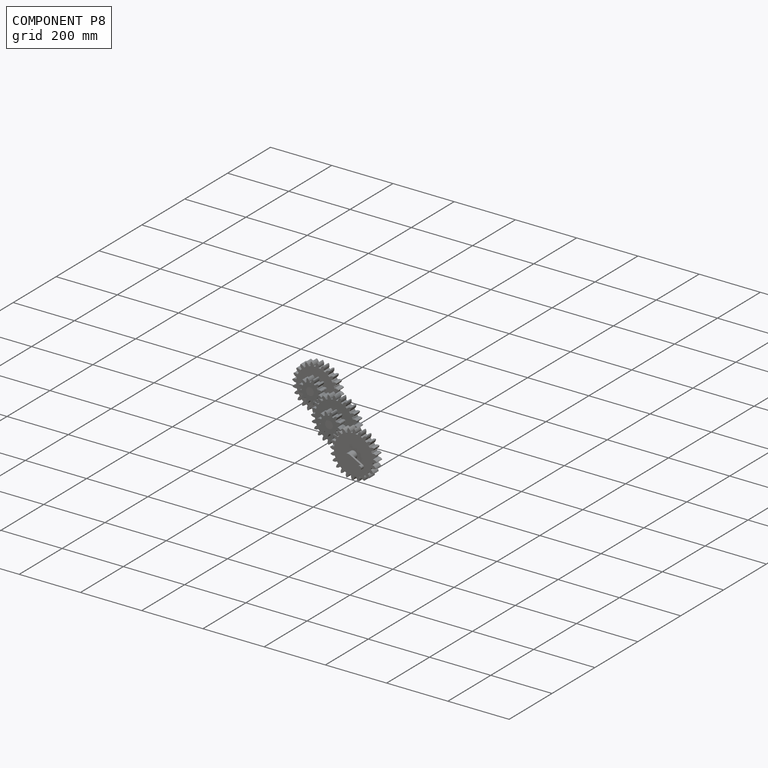
[diagram: component P8 — assembled]
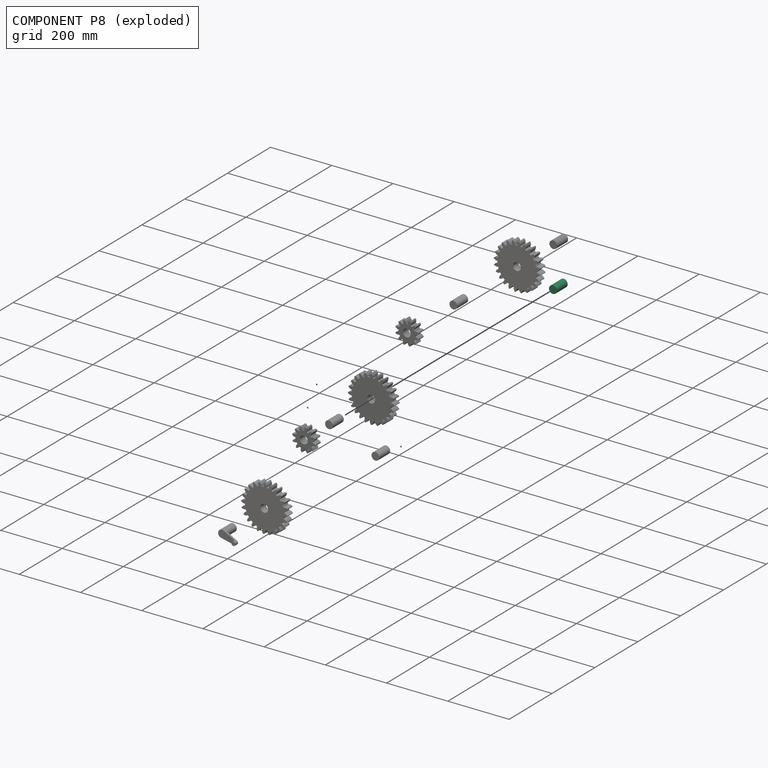
[diagram: component P8 — exploded]
COMPONENT P8 — same part as P0 (CADFS 00387538); its construction recipe is shown at P0.
Held by: FASTENED mate "Fastened 5" to P0.
